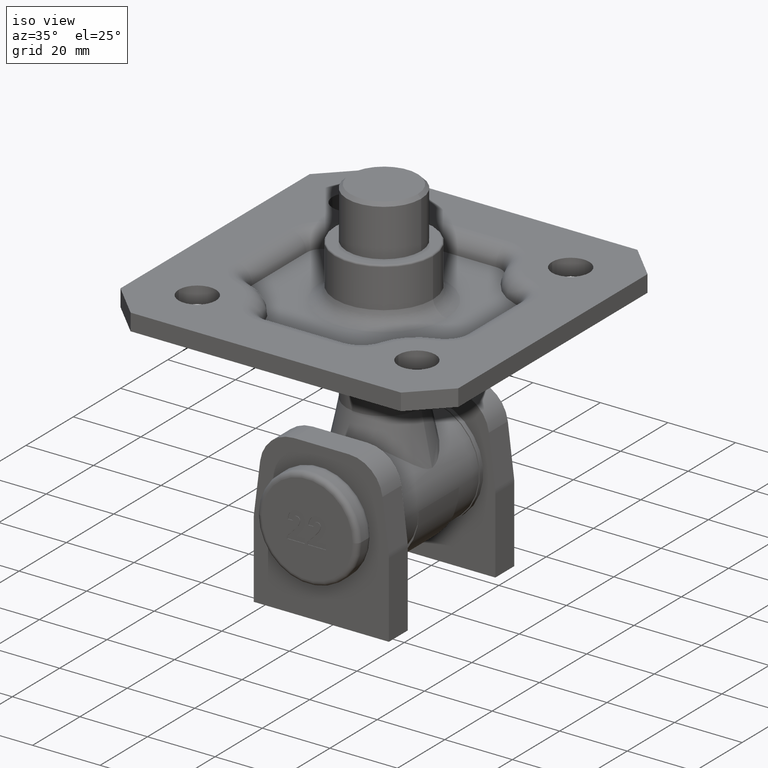
[diagram: clean part render]
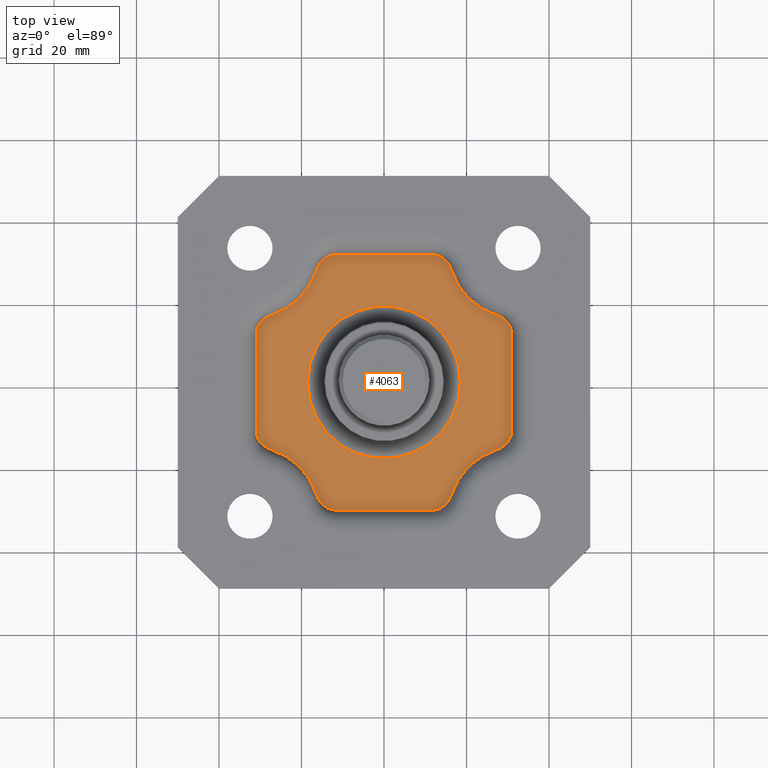
[diagram: tour spotlight — one face highlighted and labeled with its STEP entity id]
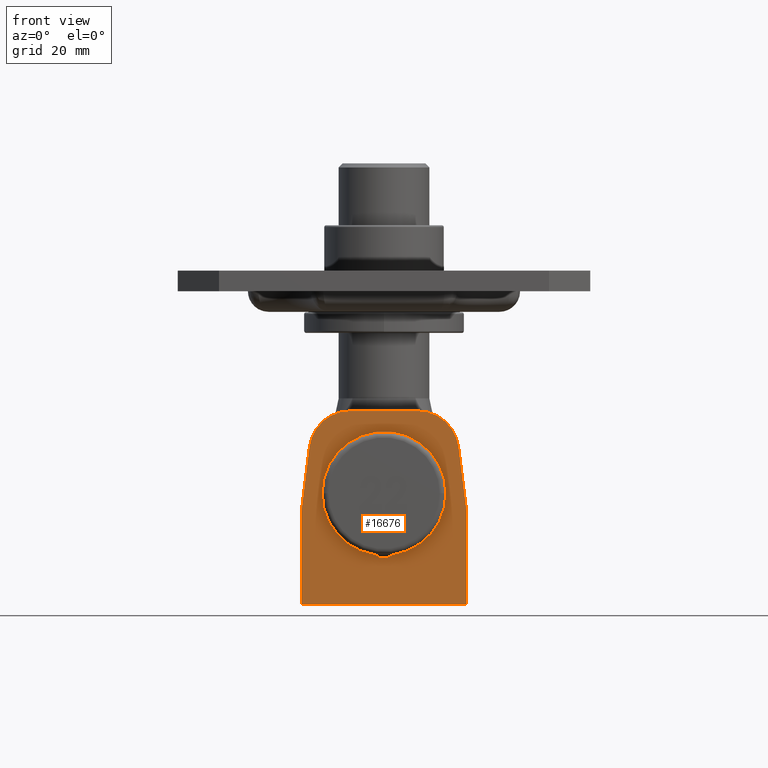
[diagram: tour spotlight — one face highlighted and labeled with its STEP entity id]
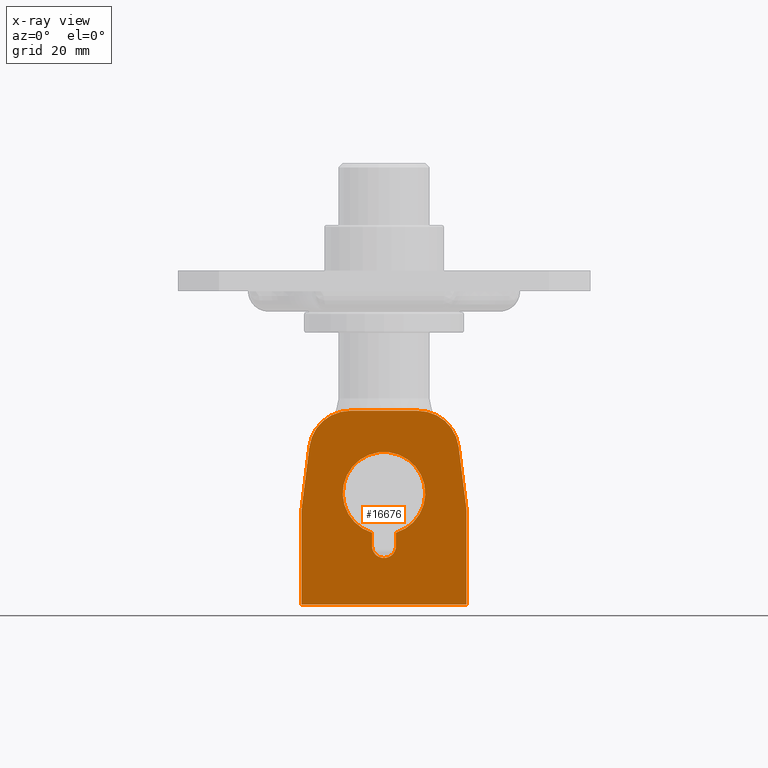
[diagram: x-ray of the same camera — body ghosted, this tour face saturated]
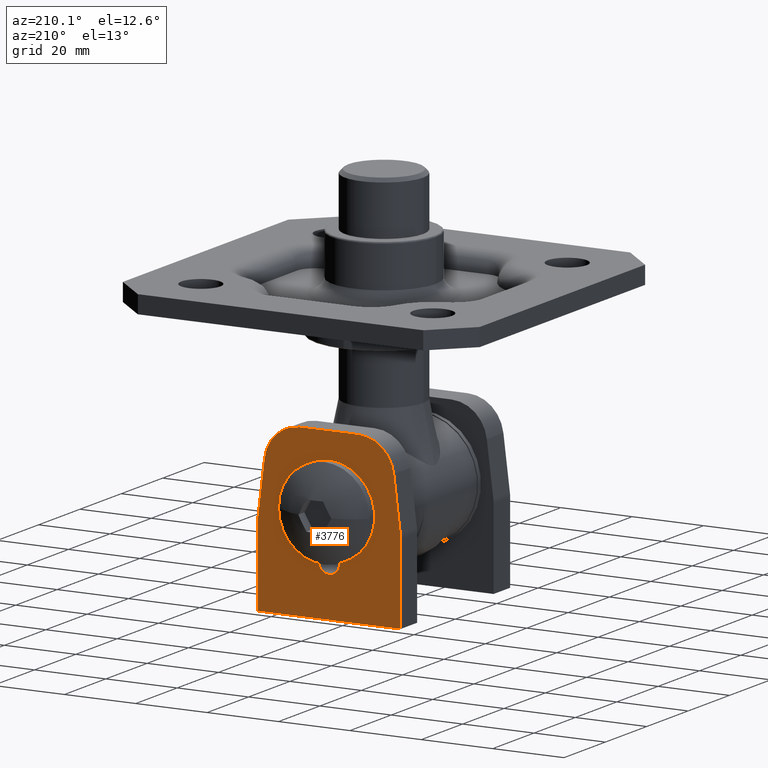
[diagram: tour spotlight — one face highlighted and labeled with its STEP entity id]
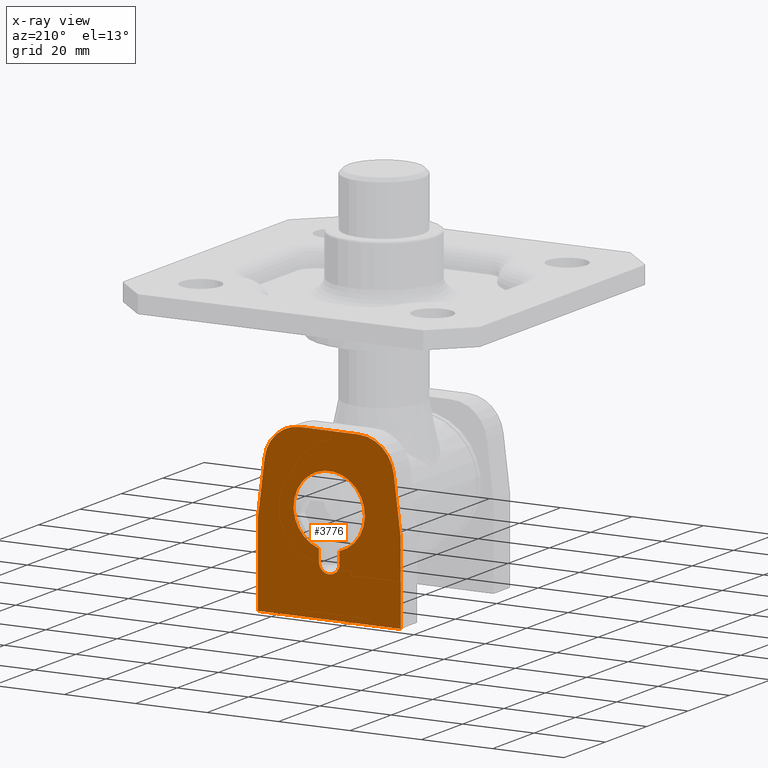
[diagram: x-ray of the same camera — body ghosted, this tour face saturated]
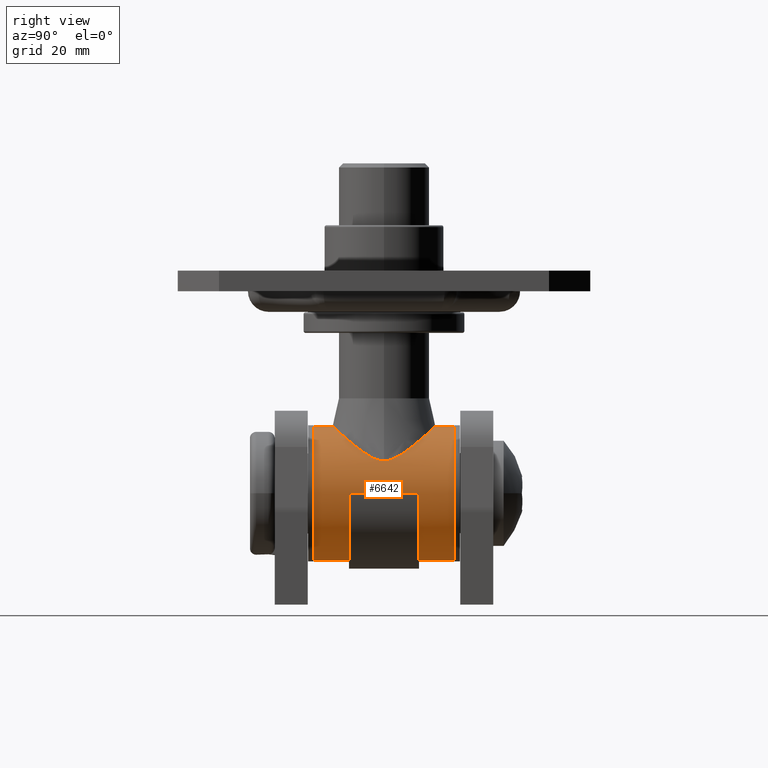
[diagram: tour spotlight — one face highlighted and labeled with its STEP entity id]
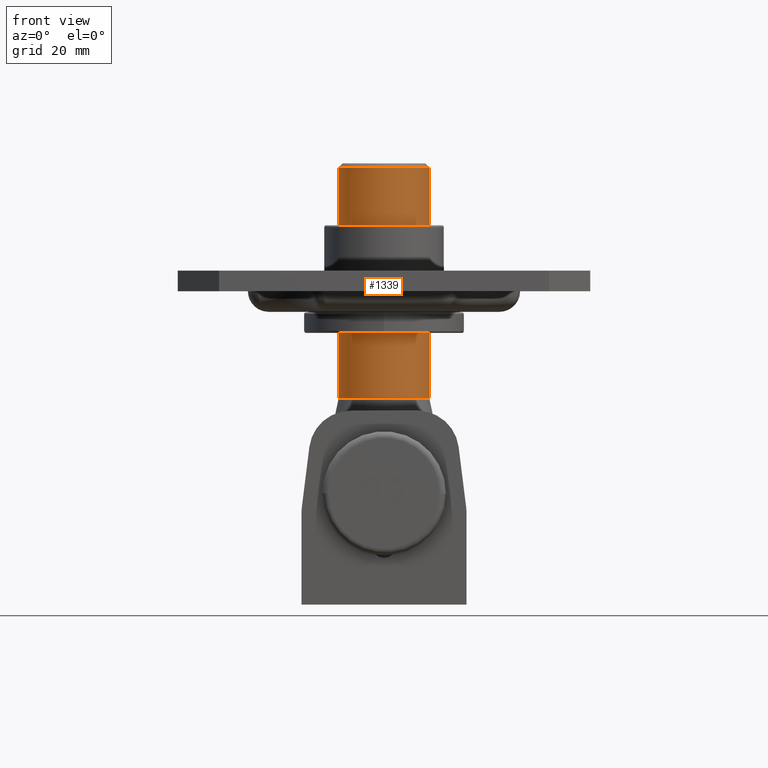
[diagram: tour spotlight — one face highlighted and labeled with its STEP entity id]
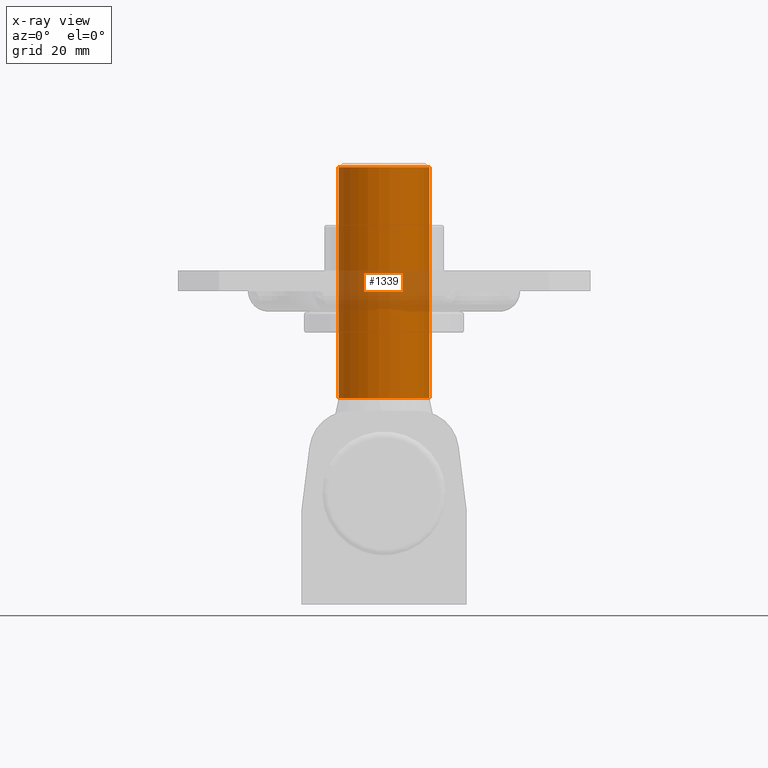
[diagram: x-ray of the same camera — body ghosted, this tour face saturated]
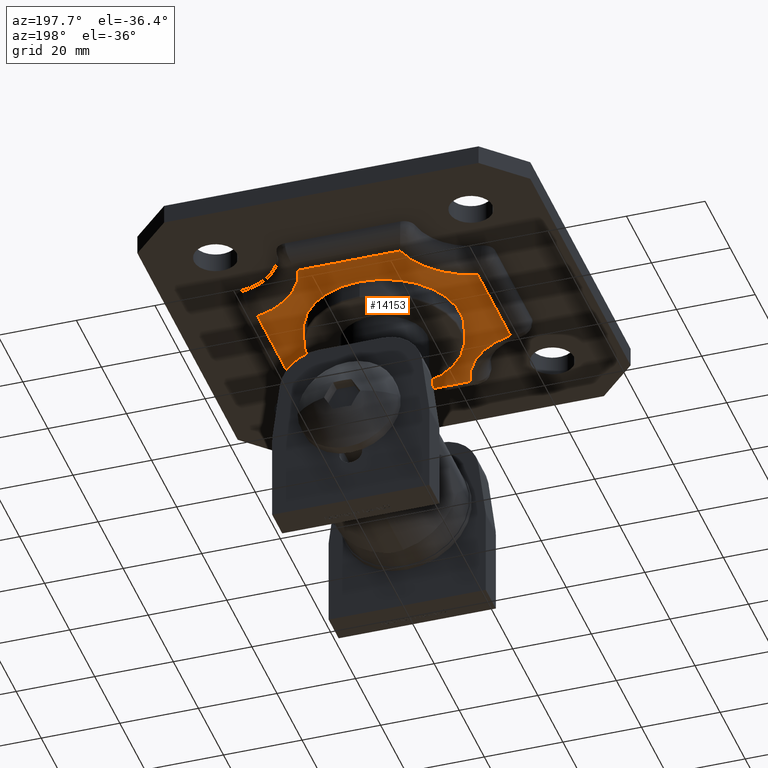
[diagram: tour spotlight — one face highlighted and labeled with its STEP entity id]
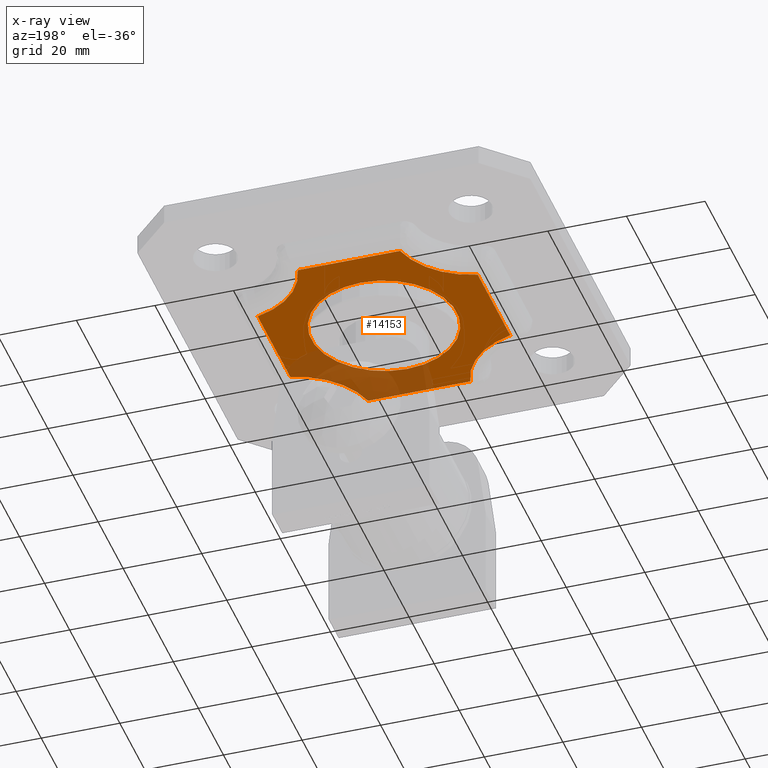
[diagram: x-ray of the same camera — body ghosted, this tour face saturated]
A machine part: a face-by-face anatomy tour. The part has 598 B-rep faces; the first image is the clean iso view, then the 6 largest visible faces are spotlighted one at a time (largest first), each with its STEP entity span.

Face 1 — top view, entity #4063. In plain terms, the highlighted planar face has unit normal (0, 0, 1).
Definition (entity closure, byte-faithful):
#96 = ORIENTED_EDGE ( 'NONE', *, *, #15837, .F. ) ;
#124 = LINE ( 'NONE', #3116, #1850 ) ;
#391 = CARTESIAN_POINT ( 'NONE',  ( -15.56630577812428000, -31.00000000000072800, 2.500000000000002200 ) ) ;
#408 = DIRECTION ( 'NONE',  ( 0.0000000000000000000, -1.000000000000000000, -0.0000000000000000000 ) ) ;
#458 = CARTESIAN_POINT ( 'NONE',  ( -27.47727272727345100, 16.25893443324024500, 2.500000000000002200 ) ) ;
#469 = LINE ( 'NONE', #12677, #1109 ) ;
#501 = CARTESIAN_POINT ( 'NONE',  ( 11.48215044301649500, 31.00000000000071400, 2.500000000000002200 ) ) ;
#542 = CARTESIAN_POINT ( 'NONE',  ( -31.00000000000072100, 11.48215044301649500, 2.500000000000002200 ) ) ;
#629 = EDGE_LOOP ( 'NONE', ( #96, #12695 ) ) ;
#673 = CARTESIAN_POINT ( 'NONE',  ( -27.47727272727345500, -16.25893443324023800, 2.500000000000002200 ) ) ;
#708 = AXIS2_PLACEMENT_3D ( 'NONE', #9150, #2184, #14320 ) ;
#746 = DIRECTION ( 'NONE',  ( 0.0000000000000000000, 0.0000000000000000000, 1.000000000000000000 ) ) ;
#866 = VERTEX_POINT ( 'NONE', #673 ) ;
#1052 = ORIENTED_EDGE ( 'NONE', *, *, #1323, .T. ) ;
#1109 = VECTOR ( 'NONE', #408, 1000.000000000000000 ) ;
#1130 = DIRECTION ( 'NONE',  ( -1.000000000000000000, 0.0000000000000000000, 0.0000000000000000000 ) ) ;
#1185 = CARTESIAN_POINT ( 'NONE',  ( -16.25893443324024500, 27.47727272727344800, 2.500000000000002200 ) ) ;
#1223 = CARTESIAN_POINT ( 'NONE',  ( 11.48215044301649200, -31.00000000000072800, 2.500000000000002200 ) ) ;
#1323 = EDGE_CURVE ( 'NONE', #7705, #3470, #7674, .T. ) ;
#1543 = VECTOR ( 'NONE', #4138, 1000.000000000000000 ) ;
#1547 = DIRECTION ( 'NONE',  ( 0.0000000000000000000, 0.0000000000000000000, -1.000000000000000000 ) ) ;
#1563 = VECTOR ( 'NONE', #10506, 1000.000000000000000 ) ;
#1581 = DIRECTION ( 'NONE',  ( -1.000000000000000000, 0.0000000000000000000, 0.0000000000000000000 ) ) ;
#1729 = CARTESIAN_POINT ( 'NONE',  ( 27.47727272727344800, 16.25893443324024500, 2.500000000000002200 ) ) ;
#1731 = AXIS2_PLACEMENT_3D ( 'NONE', #3771, #14720, #15935 ) ;
#1850 = VECTOR ( 'NONE', #10931, 1000.000000000000000 ) ;
#2133 = EDGE_CURVE ( 'NONE', #11703, #5280, #8716, .T. ) ;
#2184 = DIRECTION ( 'NONE',  ( 0.0000000000000000000, 0.0000000000000000000, -1.000000000000000000 ) ) ;
#2268 = CARTESIAN_POINT ( 'NONE',  ( -11.48215044301649500, 26.00000000000071400, 2.500000000000002200 ) ) ;
#2428 = CIRCLE ( 'NONE', #708, 5.000000000000115500 ) ;
#2446 = AXIS2_PLACEMENT_3D ( 'NONE', #17061, #17235, #14374 ) ;
#2504 = AXIS2_PLACEMENT_3D ( 'NONE', #14602, #2643, #2751 ) ;
#2618 = EDGE_CURVE ( 'NONE', #8003, #15229, #13566, .T. ) ;
#2643 = DIRECTION ( 'NONE',  ( 0.0000000000000000000, 0.0000000000000000000, -1.000000000000000000 ) ) ;
#2692 = CARTESIAN_POINT ( 'NONE',  ( -31.00000000000072100, -11.48215044301648800, 2.500000000000002200 ) ) ;
#2751 = DIRECTION ( 'NONE',  ( -1.000000000000000000, 0.0000000000000000000, 0.0000000000000000000 ) ) ;
#2810 = EDGE_CURVE ( 'NONE', #9755, #7705, #11232, .T. ) ;
#2889 = DIRECTION ( 'NONE',  ( -1.000000000000000000, 0.0000000000000000000, 0.0000000000000000000 ) ) ;
#2909 = DIRECTION ( 'NONE',  ( -1.000000000000000000, 0.0000000000000000000, 0.0000000000000000000 ) ) ;
#3058 = ORIENTED_EDGE ( 'NONE', *, *, #6524, .T. ) ;
#3116 = CARTESIAN_POINT ( 'NONE',  ( -15.56630577812427600, 31.00000000000071400, 2.500000000000002200 ) ) ;
#3214 = DIRECTION ( 'NONE',  ( -1.000000000000000000, 0.0000000000000000000, 0.0000000000000000000 ) ) ;
#3296 = CARTESIAN_POINT ( 'NONE',  ( -26.00000000000072100, -11.48215044301648800, 2.500000000000002200 ) ) ;
#3465 = CIRCLE ( 'NONE', #13453, 18.50000000000043000 ) ;
#3470 = VERTEX_POINT ( 'NONE', #17322 ) ;
#3599 = FACE_OUTER_BOUND ( 'NONE', #14019, .T. ) ;
#3771 = CARTESIAN_POINT ( 'NONE',  ( -11.48215044301649500, -26.00000000000072800, 2.500000000000002200 ) ) ;
#3979 = CIRCLE ( 'NONE', #13429, 5.000000000000115500 ) ;
#4063 = ADVANCED_FACE ( 'NONE', ( #3599, #12612 ), #15084, .T. ) ;
#4138 = DIRECTION ( 'NONE',  ( 0.0000000000000000000, 1.000000000000000000, 0.0000000000000000000 ) ) ;
#4403 = ORIENTED_EDGE ( 'NONE', *, *, #5596, .T. ) ;
#4443 = CARTESIAN_POINT ( 'NONE',  ( 0.0000000000000000000, 0.0000000000000000000, 2.500000000000002200 ) ) ;
#4546 = EDGE_CURVE ( 'NONE', #6394, #9755, #3979, .T. ) ;
#4595 = VERTEX_POINT ( 'NONE', #542 ) ;
#4764 = ORIENTED_EDGE ( 'NONE', *, *, #5620, .T. ) ;
#4868 = ORIENTED_EDGE ( 'NONE', *, *, #13339, .T. ) ;
#5030 = DIRECTION ( 'NONE',  ( 0.0000000000000000000, 0.0000000000000000000, -1.000000000000000000 ) ) ;
#5086 = AXIS2_PLACEMENT_3D ( 'NONE', #7431, #11420, #15434 ) ;
#5195 = CIRCLE ( 'NONE', #1731, 5.000000000000115500 ) ;
#5280 = VERTEX_POINT ( 'NONE', #15618 ) ;
#5385 = CARTESIAN_POINT ( 'NONE',  ( -11.48215044301649500, 31.00000000000071400, 2.500000000000002200 ) ) ;
#5584 = CARTESIAN_POINT ( 'NONE',  ( 26.00000000000071400, -11.48215044301649500, 2.500000000000002200 ) ) ;
#5596 = EDGE_CURVE ( 'NONE', #17397, #6394, #124, .T. ) ;
#5620 = EDGE_CURVE ( 'NONE', #8687, #15692, #11737, .T. ) ;
#5824 = VERTEX_POINT ( 'NONE', #1185 ) ;
#6164 = AXIS2_PLACEMENT_3D ( 'NONE', #16887, #746, #15473 ) ;
#6326 = DIRECTION ( 'NONE',  ( -1.000000000000000000, 0.0000000000000000000, 0.0000000000000000000 ) ) ;
#6338 = CARTESIAN_POINT ( 'NONE',  ( -16.25893443324024900, -27.47727272727345500, 2.500000000000002200 ) ) ;
#6394 = VERTEX_POINT ( 'NONE', #501 ) ;
#6478 = CARTESIAN_POINT ( 'NONE',  ( 27.47727272727344800, -16.25893443324024500, 2.500000000000002200 ) ) ;
#6524 = EDGE_CURVE ( 'NONE', #15229, #12386, #5195, .T. ) ;
#6531 = CARTESIAN_POINT ( 'NONE',  ( 16.25893443324024200, -27.47727272727345800, 2.500000000000002200 ) ) ;
#6787 = CIRCLE ( 'NONE', #8715, 5.000000000000115500 ) ;
#7314 = VERTEX_POINT ( 'NONE', #458 ) ;
#7423 = ORIENTED_EDGE ( 'NONE', *, *, #10185, .T. ) ;
#7431 = CARTESIAN_POINT ( 'NONE',  ( 32.50000000000073200, 32.50000000000073200, 2.500000000000002200 ) ) ;
#7592 = VERTEX_POINT ( 'NONE', #2692 ) ;
#7674 = CIRCLE ( 'NONE', #2504, 5.000000000000115500 ) ;
#7705 = VERTEX_POINT ( 'NONE', #1729 ) ;
#7932 = ORIENTED_EDGE ( 'NONE', *, *, #10173, .T. ) ;
#8003 = VERTEX_POINT ( 'NONE', #1223 ) ;
#8064 = AXIS2_PLACEMENT_3D ( 'NONE', #15916, #17271, #1130 ) ;
#8279 = DIRECTION ( 'NONE',  ( -1.000000000000000000, 0.0000000000000000000, 0.0000000000000000000 ) ) ;
#8601 = EDGE_CURVE ( 'NONE', #866, #7592, #14475, .T. ) ;
#8687 = VERTEX_POINT ( 'NONE', #11744 ) ;
#8715 = AXIS2_PLACEMENT_3D ( 'NONE', #2268, #14396, #11541 ) ;
#8716 = CIRCLE ( 'NONE', #15334, 18.50000000000043000 ) ;
#9150 = CARTESIAN_POINT ( 'NONE',  ( 11.48215044301649200, -26.00000000000072800, 2.500000000000002200 ) ) ;
#9190 = ORIENTED_EDGE ( 'NONE', *, *, #15756, .T. ) ;
#9755 = VERTEX_POINT ( 'NONE', #10471 ) ;
#9902 = DIRECTION ( 'NONE',  ( 0.0000000000000000000, 0.0000000000000000000, -1.000000000000000000 ) ) ;
#10102 = ORIENTED_EDGE ( 'NONE', *, *, #8601, .T. ) ;
#10173 = EDGE_CURVE ( 'NONE', #12386, #866, #14005, .T. ) ;
#10185 = EDGE_CURVE ( 'NONE', #15614, #8003, #2428, .T. ) ;
#10385 = LINE ( 'NONE', #10825, #1543 ) ;
#10471 = CARTESIAN_POINT ( 'NONE',  ( 16.25893443324024500, 27.47727272727344800, 2.500000000000002200 ) ) ;
#10506 = DIRECTION ( 'NONE',  ( -1.000000000000000000, 0.0000000000000000000, 0.0000000000000000000 ) ) ;
#10825 = CARTESIAN_POINT ( 'NONE',  ( -31.00000000000072100, 15.56630577812427600, 2.500000000000002200 ) ) ;
#10854 = ORIENTED_EDGE ( 'NONE', *, *, #2810, .T. ) ;
#10931 = DIRECTION ( 'NONE',  ( 1.000000000000000000, 0.0000000000000000000, 0.0000000000000000000 ) ) ;
#11032 = DIRECTION ( 'NONE',  ( 0.0000000000000000000, 0.0000000000000000000, -1.000000000000000000 ) ) ;
#11053 = ORIENTED_EDGE ( 'NONE', *, *, #4546, .T. ) ;
#11163 = CIRCLE ( 'NONE', #12238, 5.000000000000115500 ) ;
#11232 = CIRCLE ( 'NONE', #5086, 17.00000000000038700 ) ;
#11309 = EDGE_CURVE ( 'NONE', #5824, #17397, #6787, .T. ) ;
#11420 = DIRECTION ( 'NONE',  ( 0.0000000000000000000, 0.0000000000000000000, 1.000000000000000000 ) ) ;
#11541 = DIRECTION ( 'NONE',  ( -1.000000000000000000, 0.0000000000000000000, 0.0000000000000000000 ) ) ;
#11703 = VERTEX_POINT ( 'NONE', #15851 ) ;
#11737 = CIRCLE ( 'NONE', #17177, 5.000000000000115500 ) ;
#11744 = CARTESIAN_POINT ( 'NONE',  ( 31.00000000000071400, -11.48215044301649500, 2.500000000000002200 ) ) ;
#12238 = AXIS2_PLACEMENT_3D ( 'NONE', #17147, #5030, #6326 ) ;
#12386 = VERTEX_POINT ( 'NONE', #6338 ) ;
#12528 = EDGE_CURVE ( 'NONE', #7314, #5824, #16895, .T. ) ;
#12611 = ORIENTED_EDGE ( 'NONE', *, *, #2618, .T. ) ;
#12612 = FACE_BOUND ( 'NONE', #629, .T. ) ;
#12677 = CARTESIAN_POINT ( 'NONE',  ( 31.00000000000071400, 15.56630577812427600, 2.500000000000002200 ) ) ;
#12695 = ORIENTED_EDGE ( 'NONE', *, *, #2133, .F. ) ;
#13013 = ORIENTED_EDGE ( 'NONE', *, *, #15031, .T. ) ;
#13339 = EDGE_CURVE ( 'NONE', #15692, #15614, #16015, .T. ) ;
#13429 = AXIS2_PLACEMENT_3D ( 'NONE', #13810, #9902, #3214 ) ;
#13453 = AXIS2_PLACEMENT_3D ( 'NONE', #4443, #11032, #1581 ) ;
#13566 = LINE ( 'NONE', #391, #1563 ) ;
#13683 = ORIENTED_EDGE ( 'NONE', *, *, #11309, .T. ) ;
#13810 = CARTESIAN_POINT ( 'NONE',  ( 11.48215044301649500, 26.00000000000071400, 2.500000000000002200 ) ) ;
#13820 = DIRECTION ( 'NONE',  ( 0.0000000000000000000, 0.0000000000000000000, -1.000000000000000000 ) ) ;
#13834 = DIRECTION ( 'NONE',  ( 0.0000000000000000000, 0.0000000000000000000, -1.000000000000000000 ) ) ;
#14005 = CIRCLE ( 'NONE', #2446, 17.00000000000039100 ) ;
#14019 = EDGE_LOOP ( 'NONE', ( #14802, #9190, #14679, #13683, #4403, #11053, #10854, #1052, #13013, #4764, #4868, #7423, #12611, #3058, #7932, #10102 ) ) ;
#14320 = DIRECTION ( 'NONE',  ( -1.000000000000000000, 0.0000000000000000000, 0.0000000000000000000 ) ) ;
#14374 = DIRECTION ( 'NONE',  ( -1.000000000000000000, 0.0000000000000000000, 0.0000000000000000000 ) ) ;
#14396 = DIRECTION ( 'NONE',  ( 0.0000000000000000000, 0.0000000000000000000, -1.000000000000000000 ) ) ;
#14475 = CIRCLE ( 'NONE', #14934, 5.000000000000115500 ) ;
#14602 = CARTESIAN_POINT ( 'NONE',  ( 26.00000000000071400, 11.48215044301649500, 2.500000000000002200 ) ) ;
#14679 = ORIENTED_EDGE ( 'NONE', *, *, #12528, .T. ) ;
#14720 = DIRECTION ( 'NONE',  ( 0.0000000000000000000, 0.0000000000000000000, -1.000000000000000000 ) ) ;
#14802 = ORIENTED_EDGE ( 'NONE', *, *, #15342, .T. ) ;
#14934 = AXIS2_PLACEMENT_3D ( 'NONE', #3296, #16760, #16694 ) ;
#15031 = EDGE_CURVE ( 'NONE', #3470, #8687, #469, .T. ) ;
#15084 = PLANE ( 'NONE',  #15228 ) ;
#15156 = CARTESIAN_POINT ( 'NONE',  ( 0.0000000000000000000, 0.0000000000000000000, 2.500000000000002200 ) ) ;
#15228 = AXIS2_PLACEMENT_3D ( 'NONE', #16366, #1547, #2909 ) ;
#15229 = VERTEX_POINT ( 'NONE', #15795 ) ;
#15334 = AXIS2_PLACEMENT_3D ( 'NONE', #15156, #13820, #8279 ) ;
#15342 = EDGE_CURVE ( 'NONE', #7592, #4595, #10385, .T. ) ;
#15434 = DIRECTION ( 'NONE',  ( -1.000000000000000000, 0.0000000000000000000, 0.0000000000000000000 ) ) ;
#15473 = DIRECTION ( 'NONE',  ( -1.000000000000000000, 0.0000000000000000000, 0.0000000000000000000 ) ) ;
#15614 = VERTEX_POINT ( 'NONE', #6531 ) ;
#15618 = CARTESIAN_POINT ( 'NONE',  ( -18.50000000000044800, 0.0000000000000000000, 2.500000000000002200 ) ) ;
#15692 = VERTEX_POINT ( 'NONE', #6478 ) ;
#15756 = EDGE_CURVE ( 'NONE', #4595, #7314, #11163, .T. ) ;
#15795 = CARTESIAN_POINT ( 'NONE',  ( -11.48215044301649500, -31.00000000000072800, 2.500000000000002200 ) ) ;
#15837 = EDGE_CURVE ( 'NONE', #5280, #11703, #3465, .T. ) ;
#15851 = CARTESIAN_POINT ( 'NONE',  ( 18.50000000000015300, 2.265596578422622300E-015, 2.500000000000002200 ) ) ;
#15916 = CARTESIAN_POINT ( 'NONE',  ( -32.50000000000073200, 32.50000000000073200, 2.500000000000002200 ) ) ;
#15935 = DIRECTION ( 'NONE',  ( -1.000000000000000000, 0.0000000000000000000, 0.0000000000000000000 ) ) ;
#16015 = CIRCLE ( 'NONE', #6164, 17.00000000000038700 ) ;
#16366 = CARTESIAN_POINT ( 'NONE',  ( -32.50000000000073900, -32.50000000000072500, 2.500000000000002200 ) ) ;
#16694 = DIRECTION ( 'NONE',  ( -1.000000000000000000, 0.0000000000000000000, 0.0000000000000000000 ) ) ;
#16760 = DIRECTION ( 'NONE',  ( 0.0000000000000000000, 0.0000000000000000000, -1.000000000000000000 ) ) ;
#16887 = CARTESIAN_POINT ( 'NONE',  ( 32.50000000000073200, -32.50000000000073200, 2.500000000000002200 ) ) ;
#16895 = CIRCLE ( 'NONE', #8064, 17.00000000000038400 ) ;
#17061 = CARTESIAN_POINT ( 'NONE',  ( -32.50000000000073900, -32.50000000000072500, 2.500000000000002200 ) ) ;
#17147 = CARTESIAN_POINT ( 'NONE',  ( -26.00000000000072100, 11.48215044301649500, 2.500000000000002200 ) ) ;
#17177 = AXIS2_PLACEMENT_3D ( 'NONE', #5584, #13834, #2889 ) ;
#17235 = DIRECTION ( 'NONE',  ( 0.0000000000000000000, 0.0000000000000000000, 1.000000000000000000 ) ) ;
#17271 = DIRECTION ( 'NONE',  ( 0.0000000000000000000, 0.0000000000000000000, 1.000000000000000000 ) ) ;
#17322 = CARTESIAN_POINT ( 'NONE',  ( 31.00000000000071400, 11.48215044301649500, 2.500000000000002200 ) ) ;
#17397 = VERTEX_POINT ( 'NONE', #5385 ) ;

Face 2 — front view, entity #16676. An x-ray twin of the same camera follows (body ghosted, this face saturated) — the face is partly hidden behind the body. In plain terms, the highlighted planar face has unit normal (0, -1, 0).
Definition (entity closure, byte-faithful):
#98 = LINE ( 'NONE', #6456, #16767 ) ;
#400 = CARTESIAN_POINT ( 'NONE',  ( 17.00000000000000000, -4.000000000000000000, 23.50000000000000000 ) ) ;
#478 = DIRECTION ( 'NONE',  ( 0.0000000000000000000, 0.0000000000000000000, -1.000000000000000000 ) ) ;
#518 = ORIENTED_EDGE ( 'NONE', *, *, #7476, .T. ) ;
#625 = CIRCLE ( 'NONE', #7955, 9.999999999999998200 ) ;
#646 = CARTESIAN_POINT ( 'NONE',  ( 20.00000000000000000, -4.000000000000000000, -23.50000000000000700 ) ) ;
#833 = AXIS2_PLACEMENT_3D ( 'NONE', #11376, #12753, #478 ) ;
#914 = VERTEX_POINT ( 'NONE', #1020 ) ;
#982 = VERTEX_POINT ( 'NONE', #7800 ) ;
#1020 = CARTESIAN_POINT ( 'NONE',  ( 19.92277876713667700, -4.000000000000000000, 0.1177698629065827700 ) ) ;
#1057 = DIRECTION ( 'NONE',  ( 0.1240347345892083800, -0.0000000000000000000, 0.9922778767136676300 ) ) ;
#1120 = CARTESIAN_POINT ( 'NONE',  ( -10.00000000000000000, -4.000000000000000000, -1.122577482985502000 ) ) ;
#1300 = EDGE_CURVE ( 'NONE', #15204, #914, #2634, .T. ) ;
#1345 = LINE ( 'NONE', #16283, #1577 ) ;
#1397 = ORIENTED_EDGE ( 'NONE', *, *, #13620, .T. ) ;
#1496 = DIRECTION ( 'NONE',  ( 0.0000000000000000000, 1.000000000000000000, 0.0000000000000000000 ) ) ;
#1577 = VECTOR ( 'NONE', #12286, 1000.000000000000000 ) ;
#1807 = ORIENTED_EDGE ( 'NONE', *, *, #9019, .F. ) ;
#2172 = CARTESIAN_POINT ( 'NONE',  ( -20.00000000000000000, -4.000000000000000000, -23.50000000000000700 ) ) ;
#2381 = FACE_BOUND ( 'NONE', #15451, .T. ) ;
#2383 = ORIENTED_EDGE ( 'NONE', *, *, #9945, .T. ) ;
#2401 = CARTESIAN_POINT ( 'NONE',  ( -17.00000000000000000, -4.000000000000000000, 23.50000000000000000 ) ) ;
#2425 = PLANE ( 'NONE',  #12434 ) ;
#2458 = DIRECTION ( 'NONE',  ( 0.0000000000000000000, 0.0000000000000000000, -1.000000000000000000 ) ) ;
#2489 = DIRECTION ( 'NONE',  ( 0.0000000000000000000, -1.000000000000000000, 0.0000000000000000000 ) ) ;
#2553 = DIRECTION ( 'NONE',  ( 0.0000000000000000000, 0.0000000000000000000, -1.000000000000000000 ) ) ;
#2634 = CIRCLE ( 'NONE', #3151, 10.00000000000000000 ) ;
#2742 = LINE ( 'NONE', #11827, #4412 ) ;
#2768 = ORIENTED_EDGE ( 'NONE', *, *, #12287, .T. ) ;
#2900 = VECTOR ( 'NONE', #3338, 1000.000000000000000 ) ;
#2955 = CARTESIAN_POINT ( 'NONE',  ( 0.0000000000000000000, -4.000000000000000000, -12.20000000000000100 ) ) ;
#3151 = AXIS2_PLACEMENT_3D ( 'NONE', #17351, #3941, #9441 ) ;
#3272 = DIRECTION ( 'NONE',  ( 1.000000000000000000, -0.0000000000000000000, -0.0000000000000000000 ) ) ;
#3338 = DIRECTION ( 'NONE',  ( -0.0000000000000000000, -0.0000000000000000000, -1.000000000000000000 ) ) ;
#3669 = CARTESIAN_POINT ( 'NONE',  ( -18.09495658176349100, -4.000000000000000000, 14.74034734589208800 ) ) ;
#3705 = DIRECTION ( 'NONE',  ( -1.342775999361927100E-016, -0.0000000000000000000, 1.000000000000000000 ) ) ;
#3919 = VECTOR ( 'NONE', #3272, 1000.000000000000000 ) ;
#3941 = DIRECTION ( 'NONE',  ( 0.0000000000000000000, -1.000000000000000000, 0.0000000000000000000 ) ) ;
#3954 = VERTEX_POINT ( 'NONE', #10065 ) ;
#4198 = CARTESIAN_POINT ( 'NONE',  ( 20.00000000000000000, -4.000000000000000000, -23.50000000000000700 ) ) ;
#4285 = ORIENTED_EDGE ( 'NONE', *, *, #16455, .T. ) ;
#4374 = VERTEX_POINT ( 'NONE', #13080 ) ;
#4407 = EDGE_CURVE ( 'NONE', #11204, #982, #11553, .T. ) ;
#4412 = VECTOR ( 'NONE', #17201, 1000.000000000000000 ) ;
#4457 = CIRCLE ( 'NONE', #4907, 10.00000000000000000 ) ;
#4465 = VERTEX_POINT ( 'NONE', #4633 ) ;
#4633 = CARTESIAN_POINT ( 'NONE',  ( 8.172177814626813600, -4.000000000000000000, 23.50000000000000000 ) ) ;
#4907 = AXIS2_PLACEMENT_3D ( 'NONE', #14096, #11216, #13959 ) ;
#5205 = CARTESIAN_POINT ( 'NONE',  ( 20.00000000000000000, -4.000000000000000000, -1.122577482985502000 ) ) ;
#5384 = LINE ( 'NONE', #400, #3919 ) ;
#5787 = ORIENTED_EDGE ( 'NONE', *, *, #10761, .T. ) ;
#5801 = DIRECTION ( 'NONE',  ( 0.0000000000000000000, 0.0000000000000000000, 1.000000000000000000 ) ) ;
#5829 = LINE ( 'NONE', #10441, #16143 ) ;
#5981 = EDGE_CURVE ( 'NONE', #15204, #14063, #7928, .T. ) ;
#6147 = FACE_OUTER_BOUND ( 'NONE', #13637, .T. ) ;
#6375 = AXIS2_PLACEMENT_3D ( 'NONE', #1120, #13221, #2458 ) ;
#6456 = CARTESIAN_POINT ( 'NONE',  ( 20.00000000000000000, -4.000000000000000000, -0.5000000000000038900 ) ) ;
#6552 = AXIS2_PLACEMENT_3D ( 'NONE', #8222, #16343, #8281 ) ;
#6621 = CIRCLE ( 'NONE', #11876, 10.00000000000000000 ) ;
#7218 = VERTEX_POINT ( 'NONE', #12313 ) ;
#7476 = EDGE_CURVE ( 'NONE', #982, #4374, #5829, .T. ) ;
#7771 = CARTESIAN_POINT ( 'NONE',  ( 8.172177814626813600, -4.000000000000000000, 13.50000000000000200 ) ) ;
#7800 = CARTESIAN_POINT ( 'NONE',  ( -2.899999999999999900, -4.000000000000000000, -9.300000000000000700 ) ) ;
#7846 = ORIENTED_EDGE ( 'NONE', *, *, #1300, .T. ) ;
#7878 = DIRECTION ( 'NONE',  ( 0.0000000000000000000, -1.000000000000000000, 0.0000000000000000000 ) ) ;
#7928 = LINE ( 'NONE', #646, #2900 ) ;
#7955 = AXIS2_PLACEMENT_3D ( 'NONE', #8484, #1496, #5801 ) ;
#8222 = CARTESIAN_POINT ( 'NONE',  ( 0.0000000000000000000, -4.000000000000000000, -9.300000000000000700 ) ) ;
#8281 = DIRECTION ( 'NONE',  ( 0.0000000000000000000, 0.0000000000000000000, -1.000000000000000000 ) ) ;
#8376 = ORIENTED_EDGE ( 'NONE', *, *, #10838, .F. ) ;
#8436 = CIRCLE ( 'NONE', #833, 2.899999999999999900 ) ;
#8484 = CARTESIAN_POINT ( 'NONE',  ( 1.925929944387235900E-031, -4.000000000000000000, 3.499999999999998200 ) ) ;
#8711 = CARTESIAN_POINT ( 'NONE',  ( -20.00000000000000000, -4.000000000000000000, -23.50000000000000700 ) ) ;
#8751 = EDGE_CURVE ( 'NONE', #3954, #914, #98, .T. ) ;
#8790 = CARTESIAN_POINT ( 'NONE',  ( 2.899999999999999900, -4.000000000000000000, -9.300000000000000700 ) ) ;
#8909 = CIRCLE ( 'NONE', #6375, 10.00000000000000000 ) ;
#9019 = EDGE_CURVE ( 'NONE', #14409, #4465, #5384, .T. ) ;
#9155 = CARTESIAN_POINT ( 'NONE',  ( 0.0000000000000000000, -4.000000000000000000, 0.0000000000000000000 ) ) ;
#9364 = VERTEX_POINT ( 'NONE', #2172 ) ;
#9392 = VERTEX_POINT ( 'NONE', #8790 ) ;
#9441 = DIRECTION ( 'NONE',  ( 0.0000000000000000000, 0.0000000000000000000, -1.000000000000000000 ) ) ;
#9693 = ORIENTED_EDGE ( 'NONE', *, *, #5981, .F. ) ;
#9728 = EDGE_CURVE ( 'NONE', #3954, #4465, #6621, .T. ) ;
#9945 = EDGE_CURVE ( 'NONE', #7218, #9392, #1345, .T. ) ;
#10065 = CARTESIAN_POINT ( 'NONE',  ( 18.09495658176349100, -4.000000000000000000, 14.74034734589208600 ) ) ;
#10136 = DIRECTION ( 'NONE',  ( -1.000000000000000000, -0.0000000000000000000, -0.0000000000000000000 ) ) ;
#10382 = DIRECTION ( 'NONE',  ( 0.1240347345892083800, -0.0000000000000000000, -0.9922778767136676300 ) ) ;
#10441 = CARTESIAN_POINT ( 'NONE',  ( -2.900000000000000400, -4.000000000000000000, -6.070266453970862000 ) ) ;
#10761 = EDGE_CURVE ( 'NONE', #13919, #16023, #8909, .T. ) ;
#10838 = EDGE_CURVE ( 'NONE', #13919, #14427, #17133, .T. ) ;
#11064 = ORIENTED_EDGE ( 'NONE', *, *, #4407, .T. ) ;
#11204 = VERTEX_POINT ( 'NONE', #2955 ) ;
#11216 = DIRECTION ( 'NONE',  ( 0.0000000000000000000, -1.000000000000000000, 0.0000000000000000000 ) ) ;
#11306 = ORIENTED_EDGE ( 'NONE', *, *, #15089, .F. ) ;
#11376 = CARTESIAN_POINT ( 'NONE',  ( 0.0000000000000000000, -4.000000000000000000, -9.300000000000000700 ) ) ;
#11553 = CIRCLE ( 'NONE', #6552, 2.899999999999999900 ) ;
#11827 = CARTESIAN_POINT ( 'NONE',  ( -20.00000000000000000, -4.000000000000000000, -0.5000000000000038900 ) ) ;
#11876 = AXIS2_PLACEMENT_3D ( 'NONE', #7771, #7878, #2553 ) ;
#12286 = DIRECTION ( 'NONE',  ( -1.342775999361927100E-016, -0.0000000000000000000, -1.000000000000000000 ) ) ;
#12287 = EDGE_CURVE ( 'NONE', #9392, #11204, #8436, .T. ) ;
#12313 = CARTESIAN_POINT ( 'NONE',  ( 2.900000000000000400, -4.000000000000000000, -6.070266453970862000 ) ) ;
#12371 = ORIENTED_EDGE ( 'NONE', *, *, #9728, .T. ) ;
#12434 = AXIS2_PLACEMENT_3D ( 'NONE', #9155, #2489, #17178 ) ;
#12488 = LINE ( 'NONE', #8711, #15678 ) ;
#12753 = DIRECTION ( 'NONE',  ( 0.0000000000000000000, 1.000000000000000000, -0.0000000000000000000 ) ) ;
#13080 = CARTESIAN_POINT ( 'NONE',  ( -2.900000000000000400, -4.000000000000000000, -6.070266453970862000 ) ) ;
#13159 = ORIENTED_EDGE ( 'NONE', *, *, #14261, .F. ) ;
#13221 = DIRECTION ( 'NONE',  ( 0.0000000000000000000, -1.000000000000000000, 0.0000000000000000000 ) ) ;
#13620 = EDGE_CURVE ( 'NONE', #4374, #7218, #625, .T. ) ;
#13637 = EDGE_LOOP ( 'NONE', ( #8376, #5787, #13159, #11306, #9693, #7846, #13692, #12371, #1807, #4285 ) ) ;
#13692 = ORIENTED_EDGE ( 'NONE', *, *, #8751, .F. ) ;
#13919 = VERTEX_POINT ( 'NONE', #14586 ) ;
#13959 = DIRECTION ( 'NONE',  ( 0.0000000000000000000, 0.0000000000000000000, -1.000000000000000000 ) ) ;
#14063 = VERTEX_POINT ( 'NONE', #4198 ) ;
#14096 = CARTESIAN_POINT ( 'NONE',  ( -8.172177814626813600, -4.000000000000000000, 13.50000000000000400 ) ) ;
#14261 = EDGE_CURVE ( 'NONE', #9364, #16023, #2742, .T. ) ;
#14409 = VERTEX_POINT ( 'NONE', #14502 ) ;
#14427 = VERTEX_POINT ( 'NONE', #3669 ) ;
#14502 = CARTESIAN_POINT ( 'NONE',  ( -8.172177814626813600, -4.000000000000000000, 23.50000000000000000 ) ) ;
#14586 = CARTESIAN_POINT ( 'NONE',  ( -19.92277876713667700, -4.000000000000000000, 0.1177698629065866700 ) ) ;
#15089 = EDGE_CURVE ( 'NONE', #14063, #9364, #12488, .T. ) ;
#15204 = VERTEX_POINT ( 'NONE', #5205 ) ;
#15451 = EDGE_LOOP ( 'NONE', ( #518, #1397, #2383, #2768, #11064 ) ) ;
#15672 = VECTOR ( 'NONE', #1057, 1000.000000000000200 ) ;
#15678 = VECTOR ( 'NONE', #10136, 1000.000000000000000 ) ;
#16023 = VERTEX_POINT ( 'NONE', #17166 ) ;
#16143 = VECTOR ( 'NONE', #3705, 1000.000000000000000 ) ;
#16283 = CARTESIAN_POINT ( 'NONE',  ( 2.899999999999999900, -4.000000000000000000, -9.300000000000000700 ) ) ;
#16343 = DIRECTION ( 'NONE',  ( 0.0000000000000000000, 1.000000000000000000, -0.0000000000000000000 ) ) ;
#16455 = EDGE_CURVE ( 'NONE', #14409, #14427, #4457, .T. ) ;
#16676 = ADVANCED_FACE ( 'NONE', ( #6147, #2381 ), #2425, .T. ) ;
#16767 = VECTOR ( 'NONE', #10382, 1000.000000000000200 ) ;
#17133 = LINE ( 'NONE', #2401, #15672 ) ;
#17166 = CARTESIAN_POINT ( 'NONE',  ( -20.00000000000000000, -4.000000000000000000, -1.122577482985502000 ) ) ;
#17178 = DIRECTION ( 'NONE',  ( 0.0000000000000000000, -0.0000000000000000000, -1.000000000000000000 ) ) ;
#17201 = DIRECTION ( 'NONE',  ( -0.0000000000000000000, -0.0000000000000000000, 1.000000000000000000 ) ) ;
#17351 = CARTESIAN_POINT ( 'NONE',  ( 10.00000000000000000, -4.000000000000000000, -1.122577482985502000 ) ) ;

Face 3 — auxiliary view, entity #3776. An x-ray twin of the same camera follows (body ghosted, this face saturated) — the face is partly hidden behind the body. In plain terms, the highlighted planar face has unit normal (0, -1, 0).
Definition (entity closure, byte-faithful):
#191 = DIRECTION ( 'NONE',  ( -0.0000000000000000000, -0.0000000000000000000, -1.000000000000000000 ) ) ;
#639 = CARTESIAN_POINT ( 'NONE',  ( -2.900000000000000400, 4.000000000000000000, -6.070266453970862000 ) ) ;
#652 = EDGE_CURVE ( 'NONE', #7040, #13741, #15704, .T. ) ;
#778 = CARTESIAN_POINT ( 'NONE',  ( 20.00000000000000000, 4.000000000000000000, -1.122577482985502000 ) ) ;
#792 = AXIS2_PLACEMENT_3D ( 'NONE', #4234, #1534, #1470 ) ;
#805 = VERTEX_POINT ( 'NONE', #12883 ) ;
#1139 = VECTOR ( 'NONE', #13298, 1000.000000000000000 ) ;
#1206 = LINE ( 'NONE', #12834, #9637 ) ;
#1215 = DIRECTION ( 'NONE',  ( 0.0000000000000000000, 1.000000000000000000, -0.0000000000000000000 ) ) ;
#1218 = DIRECTION ( 'NONE',  ( -7.979727989493312600E-015, 0.0000000000000000000, -1.000000000000000000 ) ) ;
#1264 = ORIENTED_EDGE ( 'NONE', *, *, #3078, .F. ) ;
#1309 = EDGE_LOOP ( 'NONE', ( #4452, #6427, #9415, #1264, #16332 ) ) ;
#1313 = VERTEX_POINT ( 'NONE', #2251 ) ;
#1360 = VECTOR ( 'NONE', #4049, 1000.000000000000000 ) ;
#1470 = DIRECTION ( 'NONE',  ( 0.0000000000000000000, -0.0000000000000000000, -1.000000000000000000 ) ) ;
#1534 = DIRECTION ( 'NONE',  ( 0.0000000000000000000, -1.000000000000000000, 0.0000000000000000000 ) ) ;
#1559 = DIRECTION ( 'NONE',  ( 0.0000000000000000000, 0.0000000000000000000, 1.000000000000000000 ) ) ;
#1728 = CARTESIAN_POINT ( 'NONE',  ( 0.0000000000000000000, 4.000000000000000000, -9.300000000000000700 ) ) ;
#2129 = VECTOR ( 'NONE', #16910, 1000.000000000000200 ) ;
#2251 = CARTESIAN_POINT ( 'NONE',  ( 20.00000000000000000, 4.000000000000000000, -23.50000000000000700 ) ) ;
#2255 = ORIENTED_EDGE ( 'NONE', *, *, #652, .T. ) ;
#2264 = DIRECTION ( 'NONE',  ( 0.0000000000000000000, 0.0000000000000000000, -1.000000000000000000 ) ) ;
#2296 = CARTESIAN_POINT ( 'NONE',  ( -19.92277876713667700, 4.000000000000000000, 0.1177698629065866700 ) ) ;
#2556 = DIRECTION ( 'NONE',  ( -0.0000000000000000000, 1.000000000000000000, -0.0000000000000000000 ) ) ;
#2822 = CARTESIAN_POINT ( 'NONE',  ( -20.00000000000000000, 4.000000000000000000, -0.5000000000000038900 ) ) ;
#2851 = EDGE_CURVE ( 'NONE', #8055, #8821, #10399, .T. ) ;
#2863 = VERTEX_POINT ( 'NONE', #2296 ) ;
#2864 = LINE ( 'NONE', #3165, #4981 ) ;
#2947 = PLANE ( 'NONE',  #792 ) ;
#2984 = ORIENTED_EDGE ( 'NONE', *, *, #8451, .T. ) ;
#3010 = CARTESIAN_POINT ( 'NONE',  ( 8.172177814626813600, 4.000000000000000000, 23.50000000000000000 ) ) ;
#3078 = EDGE_CURVE ( 'NONE', #11794, #805, #17239, .T. ) ;
#3081 = DIRECTION ( 'NONE',  ( 0.0000000000000000000, 0.0000000000000000000, -1.000000000000000000 ) ) ;
#3165 = CARTESIAN_POINT ( 'NONE',  ( 20.00000000000000000, 4.000000000000000000, -23.50000000000000700 ) ) ;
#3230 = EDGE_CURVE ( 'NONE', #14270, #11794, #1206, .T. ) ;
#3344 = DIRECTION ( 'NONE',  ( -1.000000000000000000, -0.0000000000000000000, -0.0000000000000000000 ) ) ;
#3609 = LINE ( 'NONE', #7489, #2129 ) ;
#3683 = CARTESIAN_POINT ( 'NONE',  ( -18.09495658176349100, 4.000000000000000000, 14.74034734589208800 ) ) ;
#3776 = ADVANCED_FACE ( 'NONE', ( #11567, #6103 ), #2947, .F. ) ;
#3785 = CARTESIAN_POINT ( 'NONE',  ( 17.00000000000000000, 4.000000000000000000, 23.50000000000000000 ) ) ;
#3844 = CARTESIAN_POINT ( 'NONE',  ( 2.900000000000000400, 4.000000000000000000, -6.070266453970862000 ) ) ;
#4049 = DIRECTION ( 'NONE',  ( -0.0000000000000000000, -0.0000000000000000000, 1.000000000000000000 ) ) ;
#4094 = VERTEX_POINT ( 'NONE', #3010 ) ;
#4234 = CARTESIAN_POINT ( 'NONE',  ( 0.0000000000000000000, 4.000000000000000000, 0.0000000000000000000 ) ) ;
#4293 = CARTESIAN_POINT ( 'NONE',  ( -8.172177814626813600, 4.000000000000000000, 13.50000000000000400 ) ) ;
#4326 = CARTESIAN_POINT ( 'NONE',  ( -2.900000000000000400, 4.000000000000000000, -6.070266453970862000 ) ) ;
#4452 = ORIENTED_EDGE ( 'NONE', *, *, #16250, .F. ) ;
#4981 = VECTOR ( 'NONE', #191, 1000.000000000000000 ) ;
#5008 = EDGE_CURVE ( 'NONE', #4094, #16997, #13654, .T. ) ;
#5011 = AXIS2_PLACEMENT_3D ( 'NONE', #10349, #8941, #2264 ) ;
#5090 = CARTESIAN_POINT ( 'NONE',  ( 2.899999999999999900, 4.000000000000000000, -9.300000000000000700 ) ) ;
#5766 = AXIS2_PLACEMENT_3D ( 'NONE', #13157, #13103, #13315 ) ;
#6103 = FACE_BOUND ( 'NONE', #1309, .T. ) ;
#6207 = CARTESIAN_POINT ( 'NONE',  ( -20.00000000000000000, 4.000000000000000000, -23.50000000000000700 ) ) ;
#6427 = ORIENTED_EDGE ( 'NONE', *, *, #11491, .F. ) ;
#6608 = LINE ( 'NONE', #10909, #8697 ) ;
#7040 = VERTEX_POINT ( 'NONE', #7621 ) ;
#7489 = CARTESIAN_POINT ( 'NONE',  ( -17.00000000000000000, 4.000000000000000000, 23.50000000000000000 ) ) ;
#7621 = CARTESIAN_POINT ( 'NONE',  ( -20.00000000000000000, 4.000000000000000000, -23.50000000000000700 ) ) ;
#7859 = LINE ( 'NONE', #6207, #16274 ) ;
#8055 = VERTEX_POINT ( 'NONE', #3683 ) ;
#8090 = CIRCLE ( 'NONE', #15506, 2.899999999999999900 ) ;
#8451 = EDGE_CURVE ( 'NONE', #9052, #1313, #2864, .T. ) ;
#8512 = ORIENTED_EDGE ( 'NONE', *, *, #9703, .T. ) ;
#8697 = VECTOR ( 'NONE', #16678, 1000.000000000000200 ) ;
#8812 = DIRECTION ( 'NONE',  ( -0.0000000000000000000, 1.000000000000000000, -0.0000000000000000000 ) ) ;
#8821 = VERTEX_POINT ( 'NONE', #14650 ) ;
#8877 = CIRCLE ( 'NONE', #10644, 9.999999999999998200 ) ;
#8941 = DIRECTION ( 'NONE',  ( -0.0000000000000000000, 1.000000000000000000, -0.0000000000000000000 ) ) ;
#9052 = VERTEX_POINT ( 'NONE', #778 ) ;
#9281 = CARTESIAN_POINT ( 'NONE',  ( 0.0000000000000000000, 4.000000000000000000, -9.300000000000000700 ) ) ;
#9415 = ORIENTED_EDGE ( 'NONE', *, *, #9782, .F. ) ;
#9515 = VERTEX_POINT ( 'NONE', #15307 ) ;
#9574 = EDGE_CURVE ( 'NONE', #13741, #2863, #16305, .T. ) ;
#9579 = VERTEX_POINT ( 'NONE', #639 ) ;
#9612 = CARTESIAN_POINT ( 'NONE',  ( 1.925929944387235900E-031, 4.000000000000000000, 3.499999999999998200 ) ) ;
#9637 = VECTOR ( 'NONE', #16438, 1000.000000000000000 ) ;
#9703 = EDGE_CURVE ( 'NONE', #8821, #4094, #17371, .T. ) ;
#9782 = EDGE_CURVE ( 'NONE', #805, #14143, #8090, .T. ) ;
#10209 = ORIENTED_EDGE ( 'NONE', *, *, #14214, .T. ) ;
#10262 = ORIENTED_EDGE ( 'NONE', *, *, #10487, .T. ) ;
#10349 = CARTESIAN_POINT ( 'NONE',  ( -10.00000000000000000, 4.000000000000000000, -1.122577482985502000 ) ) ;
#10399 = CIRCLE ( 'NONE', #15999, 10.00000000000000000 ) ;
#10487 = EDGE_CURVE ( 'NONE', #16997, #9515, #6608, .T. ) ;
#10644 = AXIS2_PLACEMENT_3D ( 'NONE', #9612, #11014, #1559 ) ;
#10645 = DIRECTION ( 'NONE',  ( 0.0000000000000000000, 0.0000000000000000000, -1.000000000000000000 ) ) ;
#10691 = ORIENTED_EDGE ( 'NONE', *, *, #13123, .T. ) ;
#10909 = CARTESIAN_POINT ( 'NONE',  ( 20.00000000000000000, 4.000000000000000000, -0.5000000000000038900 ) ) ;
#10972 = CARTESIAN_POINT ( 'NONE',  ( 18.09495658176349100, 4.000000000000000000, 14.74034734589208600 ) ) ;
#11014 = DIRECTION ( 'NONE',  ( 0.0000000000000000000, 1.000000000000000000, 0.0000000000000000000 ) ) ;
#11123 = DIRECTION ( 'NONE',  ( 0.0000000000000000000, 1.000000000000000000, -0.0000000000000000000 ) ) ;
#11419 = CARTESIAN_POINT ( 'NONE',  ( -2.899999999999999900, 4.000000000000000000, -9.300000000000000700 ) ) ;
#11491 = EDGE_CURVE ( 'NONE', #14143, #9579, #16051, .T. ) ;
#11508 = CARTESIAN_POINT ( 'NONE',  ( -20.00000000000000000, 4.000000000000000000, -1.122577482985502000 ) ) ;
#11567 = FACE_OUTER_BOUND ( 'NONE', #12009, .T. ) ;
#11569 = AXIS2_PLACEMENT_3D ( 'NONE', #16055, #2556, #1218 ) ;
#11794 = VERTEX_POINT ( 'NONE', #5090 ) ;
#12009 = EDGE_LOOP ( 'NONE', ( #2255, #17010, #10209, #12084, #8512, #13439, #10262, #10691, #2984, #12118 ) ) ;
#12041 = VECTOR ( 'NONE', #12209, 1000.000000000000000 ) ;
#12084 = ORIENTED_EDGE ( 'NONE', *, *, #2851, .T. ) ;
#12118 = ORIENTED_EDGE ( 'NONE', *, *, #15124, .T. ) ;
#12209 = DIRECTION ( 'NONE',  ( -1.342775999361927100E-016, -0.0000000000000000000, 1.000000000000000000 ) ) ;
#12834 = CARTESIAN_POINT ( 'NONE',  ( 2.899999999999999900, 4.000000000000000000, -9.300000000000000700 ) ) ;
#12883 = CARTESIAN_POINT ( 'NONE',  ( 0.0000000000000000000, 4.000000000000000000, -12.20000000000000100 ) ) ;
#13103 = DIRECTION ( 'NONE',  ( -0.0000000000000000000, 1.000000000000000000, -0.0000000000000000000 ) ) ;
#13123 = EDGE_CURVE ( 'NONE', #9515, #9052, #15170, .T. ) ;
#13157 = CARTESIAN_POINT ( 'NONE',  ( 8.172177814626813600, 4.000000000000000000, 13.50000000000000200 ) ) ;
#13298 = DIRECTION ( 'NONE',  ( 1.000000000000000000, -0.0000000000000000000, -0.0000000000000000000 ) ) ;
#13315 = DIRECTION ( 'NONE',  ( 0.0000000000000000000, 0.0000000000000000000, -1.000000000000000000 ) ) ;
#13439 = ORIENTED_EDGE ( 'NONE', *, *, #5008, .T. ) ;
#13654 = CIRCLE ( 'NONE', #5766, 10.00000000000000000 ) ;
#13741 = VERTEX_POINT ( 'NONE', #11508 ) ;
#14143 = VERTEX_POINT ( 'NONE', #11419 ) ;
#14214 = EDGE_CURVE ( 'NONE', #2863, #8055, #3609, .T. ) ;
#14270 = VERTEX_POINT ( 'NONE', #3844 ) ;
#14650 = CARTESIAN_POINT ( 'NONE',  ( -8.172177814626813600, 4.000000000000000000, 23.50000000000000000 ) ) ;
#15124 = EDGE_CURVE ( 'NONE', #1313, #7040, #7859, .T. ) ;
#15170 = CIRCLE ( 'NONE', #11569, 10.00000000000000000 ) ;
#15307 = CARTESIAN_POINT ( 'NONE',  ( 19.92277876713667700, 4.000000000000000000, 0.1177698629065827700 ) ) ;
#15506 = AXIS2_PLACEMENT_3D ( 'NONE', #9281, #1215, #10645 ) ;
#15704 = LINE ( 'NONE', #2822, #1360 ) ;
#15905 = AXIS2_PLACEMENT_3D ( 'NONE', #1728, #11123, #3081 ) ;
#15999 = AXIS2_PLACEMENT_3D ( 'NONE', #4293, #8812, #16875 ) ;
#16051 = LINE ( 'NONE', #4326, #12041 ) ;
#16055 = CARTESIAN_POINT ( 'NONE',  ( 10.00000000000000000, 4.000000000000000000, -1.122577482985502000 ) ) ;
#16250 = EDGE_CURVE ( 'NONE', #9579, #14270, #8877, .T. ) ;
#16274 = VECTOR ( 'NONE', #3344, 1000.000000000000000 ) ;
#16305 = CIRCLE ( 'NONE', #5011, 10.00000000000000000 ) ;
#16332 = ORIENTED_EDGE ( 'NONE', *, *, #3230, .F. ) ;
#16438 = DIRECTION ( 'NONE',  ( -1.342775999361927100E-016, -0.0000000000000000000, -1.000000000000000000 ) ) ;
#16678 = DIRECTION ( 'NONE',  ( 0.1240347345892083800, -0.0000000000000000000, -0.9922778767136676300 ) ) ;
#16875 = DIRECTION ( 'NONE',  ( 0.0000000000000000000, 0.0000000000000000000, -1.000000000000000000 ) ) ;
#16910 = DIRECTION ( 'NONE',  ( 0.1240347345892083800, -0.0000000000000000000, 0.9922778767136676300 ) ) ;
#16997 = VERTEX_POINT ( 'NONE', #10972 ) ;
#17010 = ORIENTED_EDGE ( 'NONE', *, *, #9574, .T. ) ;
#17239 = CIRCLE ( 'NONE', #15905, 2.899999999999999900 ) ;
#17371 = LINE ( 'NONE', #3785, #1139 ) ;

Face 4 — right view, entity #6642. In plain terms, the highlighted cylindrical surface (partial cylindrical patch) has radius 16.25 mm, axis along (-0, -1, -0).
Definition (entity closure, byte-faithful):
#19 = AXIS2_PLACEMENT_3D ( 'NONE', #2934, #7154, #4440 ) ;
#292 = DIRECTION ( 'NONE',  ( -0.0000000000000000000, -1.000000000000000000, -0.0000000000000000000 ) ) ;
#330 = CARTESIAN_POINT ( 'NONE',  ( 0.0000000000000000000, -8.500000000000000000, 0.0000000000000000000 ) ) ;
#523 = EDGE_CURVE ( 'NONE', #13129, #670, #11554, .T. ) ;
#670 = VERTEX_POINT ( 'NONE', #4220 ) ;
#873 = ORIENTED_EDGE ( 'NONE', *, *, #11807, .F. ) ;
#1071 = ORIENTED_EDGE ( 'NONE', *, *, #2026, .T. ) ;
#1098 = CARTESIAN_POINT ( 'NONE',  ( 13.03127668219762100, -4.631640280816784000, 9.713279720120136000 ) ) ;
#1159 = CARTESIAN_POINT ( 'NONE',  ( 10.43918508730432700, -8.178761398208504100, 12.47705712107682200 ) ) ;
#1204 = CARTESIAN_POINT ( 'NONE',  ( 13.53291831860214100, 3.514221781510462600, 9.000264491731458700 ) ) ;
#1271 = CARTESIAN_POINT ( 'NONE',  ( 9.520753950830817700, -8.990456488246152800, 13.17442614044884800 ) ) ;
#1382 = CARTESIAN_POINT ( 'NONE',  ( 8.536140276114780400, 9.768383850394547700, 13.85247649869147000 ) ) ;
#1468 = CARTESIAN_POINT ( 'NONE',  ( 0.0000000000000000000, -8.500000000000000000, -16.25000000000000000 ) ) ;
#1676 = EDGE_CURVE ( 'NONE', #15343, #14380, #1778, .T. ) ;
#1778 = LINE ( 'NONE', #16595, #12104 ) ;
#1859 = DIRECTION ( 'NONE',  ( 0.0000000000000000000, 0.0000000000000000000, 1.000000000000000000 ) ) ;
#1909 = VERTEX_POINT ( 'NONE', #16347 ) ;
#1939 = CARTESIAN_POINT ( 'NONE',  ( 0.0000000000000000000, 8.500000000000000000, -16.25000000000000000 ) ) ;
#2026 = EDGE_CURVE ( 'NONE', #15343, #5757, #14865, .T. ) ;
#2081 = EDGE_CURVE ( 'NONE', #16806, #5757, #9996, .T. ) ;
#2140 = CARTESIAN_POINT ( 'NONE',  ( 0.0000000000000000000, 17.00000000000000000, -16.25000000000000000 ) ) ;
#2200 = DIRECTION ( 'NONE',  ( -0.0000000000000000000, -1.000000000000000000, -0.0000000000000000000 ) ) ;
#2436 = CARTESIAN_POINT ( 'NONE',  ( 12.64455407745311700, -5.335171722181522500, 10.21162215672163900 ) ) ;
#2496 = CARTESIAN_POINT ( 'NONE',  ( 2.356845343269039300, -12.25392165814476400, 16.08485933521356900 ) ) ;
#2547 = CARTESIAN_POINT ( 'NONE',  ( 14.21529072436759500, -0.2393926358428570500, 7.873246447413468000 ) ) ;
#2603 = CARTESIAN_POINT ( 'NONE',  ( 13.20965603114995800, -4.268783689019590700, 9.468312262375464500 ) ) ;
#2641 = CARTESIAN_POINT ( 'NONE',  ( 3.716505289940367000, 11.96961637088230300, 15.82588638473429700 ) ) ;
#2656 = CARTESIAN_POINT ( 'NONE',  ( 3.270031964609275900, -12.07776259110369900, 15.92433077890966300 ) ) ;
#2749 = CARTESIAN_POINT ( 'NONE',  ( 10.41680059250917400, 8.176751559795340200, 12.47764036595908100 ) ) ;
#2778 = CARTESIAN_POINT ( 'NONE',  ( 16.25000000000000000, 8.500000000000000000, 3.209238430557093100E-014 ) ) ;
#2934 = CARTESIAN_POINT ( 'NONE',  ( 0.0000000000000000000, 17.00000000000000000, 0.0000000000000000000 ) ) ;
#3363 = B_SPLINE_CURVE_WITH_KNOTS ( 'NONE', 3,
 ( #13399, #5279, #5401, #8035, #10791, #12091, #1204, #4035, #14717, #8097, #13285, #9439, #13451, #2749, #10731, #10852, #1382, #4101, #9266, #15979, #13504, #17462, #9384, #2641, #9323, #10625, #10681, #6799 ),
 .UNSPECIFIED., .F., .F.,
 ( 4, 2, 2, 2, 2, 2, 2, 2, 2, 2, 2, 2, 2, 4 ),
 ( 0.03504011041004789800, 0.03645355888756331800, 0.03786700736507874600, 0.03928045584259416700, 0.04069390432010959500, 0.04352080127514044300, 0.04493424975265586400, 0.04634769823017129100, 0.04917459518520213300, 0.05058804366271756100, 0.05200149214023297400, 0.05341494061774840200, 0.05482838909526382300, 0.05765528605029467100 ),
 .UNSPECIFIED. ) ;
#3575 = EDGE_CURVE ( 'NONE', #13129, #12799, #13161, .T. ) ;
#3679 = CIRCLE ( 'NONE', #6484, 16.25000000000000000 ) ;
#3745 = VERTEX_POINT ( 'NONE', #16353 ) ;
#3779 = CARTESIAN_POINT ( 'NONE',  ( 14.13966904431325000, -1.174638964938557600, 8.008589405112056500 ) ) ;
#3836 = CARTESIAN_POINT ( 'NONE',  ( 10.99453450001239900, -7.598026107402022300, 11.98710953220211400 ) ) ;
#3948 = CARTESIAN_POINT ( 'NONE',  ( 8.174275599328092700, -9.991665715074033100, 14.05056808988572600 ) ) ;
#4035 = CARTESIAN_POINT ( 'NONE',  ( 13.20712744278087100, 4.274283488612702800, 9.471875413518903400 ) ) ;
#4101 = CARTESIAN_POINT ( 'NONE',  ( 7.439895490342433200, 10.44508816101592300, 14.45282080020572800 ) ) ;
#4220 = CARTESIAN_POINT ( 'NONE',  ( 14.21529072436759300, 1.893831581983057400E-015, 7.873246447413464500 ) ) ;
#4258 = ORIENTED_EDGE ( 'NONE', *, *, #1676, .F. ) ;
#4361 = DIRECTION ( 'NONE',  ( 0.0000000000000000000, 0.0000000000000000000, 1.000000000000000000 ) ) ;
#4406 = DIRECTION ( 'NONE',  ( -0.0000000000000000000, -1.000000000000000000, -0.0000000000000000000 ) ) ;
#4440 = DIRECTION ( 'NONE',  ( 0.0000000000000000000, 0.0000000000000000000, 1.000000000000000000 ) ) ;
#4841 = ORIENTED_EDGE ( 'NONE', *, *, #2081, .F. ) ;
#5007 = CARTESIAN_POINT ( 'NONE',  ( 16.25000000000000000, -8.500000000000000000, 3.209238430557093100E-014 ) ) ;
#5019 = ORIENTED_EDGE ( 'NONE', *, *, #14921, .T. ) ;
#5234 = CARTESIAN_POINT ( 'NONE',  ( 12.43616060189023800, -5.675721164978176200, 10.46513837195636200 ) ) ;
#5279 = CARTESIAN_POINT ( 'NONE',  ( 14.21529072436759300, 0.4806333690932497200, 7.873246447413469800 ) ) ;
#5292 = CARTESIAN_POINT ( 'NONE',  ( 7.074437892919895900, -10.67087108125124200, 14.65311602999029400 ) ) ;
#5353 = CARTESIAN_POINT ( 'NONE',  ( 11.98931000536231500, -6.338991300904838000, 10.97422695480276500 ) ) ;
#5401 = CARTESIAN_POINT ( 'NONE',  ( 14.17578054169809900, 0.9480878962179930500, 7.945511571968303600 ) ) ;
#5757 = VERTEX_POINT ( 'NONE', #1939 ) ;
#5809 = CIRCLE ( 'NONE', #19, 16.25000000000000000 ) ;
#6092 = AXIS2_PLACEMENT_3D ( 'NONE', #14188, #16873, #8726 ) ;
#6212 = VECTOR ( 'NONE', #2200, 1000.000000000000000 ) ;
#6391 = CARTESIAN_POINT ( 'NONE',  ( 0.0000000000000000000, 17.00000000000000000, -16.25000000000000000 ) ) ;
#6484 = AXIS2_PLACEMENT_3D ( 'NONE', #330, #15127, #4361 ) ;
#6500 = CARTESIAN_POINT ( 'NONE',  ( 1.990051048614449300E-015, 17.00000000000000000, 16.25000000000000000 ) ) ;
#6532 = CARTESIAN_POINT ( 'NONE',  ( 0.4709423984512849400, -12.43475679127264800, 16.25000000000000000 ) ) ;
#6642 = ADVANCED_FACE ( 'NONE', ( #10469 ), #7727, .T. ) ;
#6799 = CARTESIAN_POINT ( 'NONE',  ( 1.990051048628622400E-015, 12.43475679127265100, 16.25000000000000000 ) ) ;
#7154 = DIRECTION ( 'NONE',  ( 0.0000000000000000000, 1.000000000000000000, -0.0000000000000000000 ) ) ;
#7455 = VECTOR ( 'NONE', #4406, 1000.000000000000000 ) ;
#7634 = VECTOR ( 'NONE', #17266, 1000.000000000000000 ) ;
#7727 = CYLINDRICAL_SURFACE ( 'NONE', #11879, 16.25000000000000000 ) ;
#7819 = CARTESIAN_POINT ( 'NONE',  ( 14.16754267100810200, -0.9447270083442251800, 7.958940753106349000 ) ) ;
#7877 = CARTESIAN_POINT ( 'NONE',  ( 13.86666457704662900, -2.495575866878396300, 8.473012328847337600 ) ) ;
#8035 = CARTESIAN_POINT ( 'NONE',  ( 14.03041094186048600, 1.862526765873909500, 8.199480282870991800 ) ) ;
#8097 = CARTESIAN_POINT ( 'NONE',  ( 12.44792901656224000, 5.692046329309963700, 10.46467947776936200 ) ) ;
#8162 = ORIENTED_EDGE ( 'NONE', *, *, #8434, .F. ) ;
#8333 = ORIENTED_EDGE ( 'NONE', *, *, #15370, .F. ) ;
#8434 = EDGE_CURVE ( 'NONE', #10907, #16806, #5809, .T. ) ;
#8726 = DIRECTION ( 'NONE',  ( 0.0000000000000000000, 0.0000000000000000000, 1.000000000000000000 ) ) ;
#8912 = VECTOR ( 'NONE', #292, 1000.000000000000000 ) ;
#9007 = ORIENTED_EDGE ( 'NONE', *, *, #523, .F. ) ;
#9108 = CARTESIAN_POINT ( 'NONE',  ( 1.990050823952445500E-015, -12.43475679127265100, 16.25000000000000000 ) ) ;
#9166 = CARTESIAN_POINT ( 'NONE',  ( 0.9460018119030464400, -12.41221395421080200, 16.22939172601813600 ) ) ;
#9226 = CARTESIAN_POINT ( 'NONE',  ( 13.92318145274675900, -2.284811933992828800, 8.379570050990242400 ) ) ;
#9266 = CARTESIAN_POINT ( 'NONE',  ( 7.056154649530667700, 10.65976677929706500, 14.64445321456447000 ) ) ;
#9278 = CARTESIAN_POINT ( 'NONE',  ( 14.21529072436759300, 1.893831581983057400E-015, 7.873246447413464500 ) ) ;
#9323 = CARTESIAN_POINT ( 'NONE',  ( 3.259022858700628700, 12.08033325909862500, 15.92667105616260600 ) ) ;
#9384 = CARTESIAN_POINT ( 'NONE',  ( 4.599532361289854900, 11.71218957153065100, 15.59215807674231300 ) ) ;
#9439 = CARTESIAN_POINT ( 'NONE',  ( 11.24588841097715000, 7.286796581404234800, 11.73542070964868100 ) ) ;
#9766 = CARTESIAN_POINT ( 'NONE',  ( 1.990051048614449300E-015, 17.00000000000000000, 16.25000000000000000 ) ) ;
#9797 = ORIENTED_EDGE ( 'NONE', *, *, #3575, .T. ) ;
#9845 = CARTESIAN_POINT ( 'NONE',  ( 0.0000000000000000000, -17.00000000000000000, 0.0000000000000000000 ) ) ;
#9996 = LINE ( 'NONE', #2140, #6212 ) ;
#10465 = CARTESIAN_POINT ( 'NONE',  ( 9.200274921061998500, -9.250961553120948400, 13.40068420414461200 ) ) ;
#10469 = FACE_OUTER_BOUND ( 'NONE', #12007, .T. ) ;
#10522 = CARTESIAN_POINT ( 'NONE',  ( 8.527902818957606700, -9.751048309239232400, 13.83828996923926600 ) ) ;
#10565 = CARTESIAN_POINT ( 'NONE',  ( 0.0000000000000000000, 17.00000000000000000, 0.0000000000000000000 ) ) ;
#10574 = CARTESIAN_POINT ( 'NONE',  ( 14.06772442319044600, -1.628404658222442700, 8.134302336129041000 ) ) ;
#10625 = CARTESIAN_POINT ( 'NONE',  ( 1.880578925546786600, 12.34488176591010600, 16.16775329486917900 ) ) ;
#10681 = CARTESIAN_POINT ( 'NONE',  ( 0.9476001284214319300, 12.43475679127265100, 16.25000000000000000 ) ) ;
#10731 = CARTESIAN_POINT ( 'NONE',  ( 10.12352475565035600, 8.458233424031693200, 12.71711226929156900 ) ) ;
#10736 = CARTESIAN_POINT ( 'NONE',  ( 0.0000000000000000000, 17.00000000000000000, -16.25000000000000000 ) ) ;
#10791 = CARTESIAN_POINT ( 'NONE',  ( 13.92757707779863100, 2.293429345444759600, 8.374982504855655200 ) ) ;
#10845 = CARTESIAN_POINT ( 'NONE',  ( 1.990051048614449300E-015, 17.00000000000000000, 16.25000000000000000 ) ) ;
#10852 = CARTESIAN_POINT ( 'NONE',  ( 9.203185882493407600, 9.270100408430272100, 13.41479263367125800 ) ) ;
#10907 = VERTEX_POINT ( 'NONE', #6500 ) ;
#11185 = DIRECTION ( 'NONE',  ( 0.0000000000000000000, 1.000000000000000000, -0.0000000000000000000 ) ) ;
#11554 = B_SPLINE_CURVE_WITH_KNOTS ( 'NONE', 3,
 ( #9108, #6532, #9166, #15886, #2496, #2656, #11878, #11935, #17245, #16107, #5292, #3948, #10522, #10465, #1271, #1159, #3836, #14726, #5353, #5234, #2436, #1098, #2603, #15941, #17302, #7877, #9226, #14672, #10574, #3779, #7819, #15991, #2547, #9278 ),
 .UNSPECIFIED., .F., .F.,
 ( 4, 2, 2, 2, 2, 2, 2, 2, 2, 2, 2, 2, 2, 2, 2, 2, 4 ),
 ( 0.01251189304227862600, 0.01391990662776420600, 0.01532792021324978400, 0.01673593379873536400, 0.01814394738422094400, 0.02095997455519211000, 0.02236798814067769000, 0.02377600172616326600, 0.02659202889713442200, 0.02800004248262000200, 0.02940805606810557900, 0.03081606965359116200, 0.03222408323907673800, 0.03292809003181952600, 0.03363209682456231400, 0.03433610361730511000, 0.03504011041004789800 ),
 .UNSPECIFIED. ) ;
#11662 = LINE ( 'NONE', #10845, #8912 ) ;
#11807 = EDGE_CURVE ( 'NONE', #16445, #3745, #14803, .T. ) ;
#11878 = CARTESIAN_POINT ( 'NONE',  ( 3.718637094975735500, -11.96904734100292700, 15.82536911658016400 ) ) ;
#11879 = AXIS2_PLACEMENT_3D ( 'NONE', #10565, #12336, #13458 ) ;
#11883 = CARTESIAN_POINT ( 'NONE',  ( 1.990050823952445500E-015, -12.43475679127265100, 16.25000000000000000 ) ) ;
#11935 = CARTESIAN_POINT ( 'NONE',  ( 4.600535474974325500, -11.71184449917403100, 15.59184539634874700 ) ) ;
#12007 = EDGE_LOOP ( 'NONE', ( #8162, #5019, #13812, #9007, #9797, #15944, #873, #8333, #4258, #1071, #4841 ) ) ;
#12091 = CARTESIAN_POINT ( 'NONE',  ( 13.67954969902849300, 3.117621555357912300, 8.774260951582739700 ) ) ;
#12104 = VECTOR ( 'NONE', #16969, 1000.000000000000000 ) ;
#12336 = DIRECTION ( 'NONE',  ( -0.0000000000000000000, -1.000000000000000000, -0.0000000000000000000 ) ) ;
#12799 = VERTEX_POINT ( 'NONE', #16661 ) ;
#13129 = VERTEX_POINT ( 'NONE', #11883 ) ;
#13161 = LINE ( 'NONE', #9766, #7455 ) ;
#13285 = CARTESIAN_POINT ( 'NONE',  ( 12.00314798703719200, 6.349110467258761000, 10.97712894793943600 ) ) ;
#13399 = CARTESIAN_POINT ( 'NONE',  ( 14.21529072436759300, 1.893831581983057400E-015, 7.873246447413464500 ) ) ;
#13451 = CARTESIAN_POINT ( 'NONE',  ( 10.97758547785174500, 7.591574656265473600, 11.98723741162947900 ) ) ;
#13458 = DIRECTION ( 'NONE',  ( 0.0000000000000000000, 0.0000000000000000000, -1.000000000000000000 ) ) ;
#13504 = CARTESIAN_POINT ( 'NONE',  ( 5.862359074250096400, 11.23653839705882300, 15.16216225878299900 ) ) ;
#13583 = EDGE_CURVE ( 'NONE', #670, #1909, #3363, .T. ) ;
#13812 = ORIENTED_EDGE ( 'NONE', *, *, #13583, .F. ) ;
#14188 = CARTESIAN_POINT ( 'NONE',  ( 0.0000000000000000000, 8.500000000000000000, 0.0000000000000000000 ) ) ;
#14380 = VERTEX_POINT ( 'NONE', #5007 ) ;
#14624 = CIRCLE ( 'NONE', #15260, 16.25000000000000000 ) ;
#14672 = CARTESIAN_POINT ( 'NONE',  ( 14.02360608724729300, -1.851942966130341000, 8.210398791489039300 ) ) ;
#14717 = CARTESIAN_POINT ( 'NONE',  ( 13.02828345046871300, 4.637494972004432700, 9.717294823030636400 ) ) ;
#14726 = CARTESIAN_POINT ( 'NONE',  ( 11.75006373489718200, -6.662501491639631000, 11.23056201523758800 ) ) ;
#14803 = LINE ( 'NONE', #6391, #7634 ) ;
#14865 = CIRCLE ( 'NONE', #6092, 16.25000000000000000 ) ;
#14921 = EDGE_CURVE ( 'NONE', #10907, #1909, #11662, .T. ) ;
#15000 = EDGE_CURVE ( 'NONE', #12799, #3745, #14624, .T. ) ;
#15127 = DIRECTION ( 'NONE',  ( 0.0000000000000000000, 1.000000000000000000, -0.0000000000000000000 ) ) ;
#15260 = AXIS2_PLACEMENT_3D ( 'NONE', #9845, #11185, #1859 ) ;
#15343 = VERTEX_POINT ( 'NONE', #2778 ) ;
#15370 = EDGE_CURVE ( 'NONE', #14380, #16445, #3679, .T. ) ;
#15886 = CARTESIAN_POINT ( 'NONE',  ( 1.892267767449755000, -12.32137496891399100, 16.14643607490335200 ) ) ;
#15941 = CARTESIAN_POINT ( 'NONE',  ( 13.53398504931824500, -3.511329345296685400, 8.998622019174723300 ) ) ;
#15944 = ORIENTED_EDGE ( 'NONE', *, *, #15000, .T. ) ;
#15979 = CARTESIAN_POINT ( 'NONE',  ( 6.267667256852198500, 11.05518506016560000, 14.99885580799561200 ) ) ;
#15991 = CARTESIAN_POINT ( 'NONE',  ( 14.20536045215643200, -0.4777951532939182500, 7.891244367690203100 ) ) ;
#16107 = CARTESIAN_POINT ( 'NONE',  ( 6.292845909132278600, -11.06632838488291500, 15.00847088894448700 ) ) ;
#16347 = CARTESIAN_POINT ( 'NONE',  ( 1.990051048628622400E-015, 12.43475679127265100, 16.25000000000000000 ) ) ;
#16353 = CARTESIAN_POINT ( 'NONE',  ( 0.0000000000000000000, -17.00000000000000000, -16.25000000000000000 ) ) ;
#16445 = VERTEX_POINT ( 'NONE', #1468 ) ;
#16595 = CARTESIAN_POINT ( 'NONE',  ( 16.25000000000000000, 8.500000000000000000, 3.209238430557093100E-014 ) ) ;
#16661 = CARTESIAN_POINT ( 'NONE',  ( 1.990051048614449300E-015, -17.00000000000000000, 16.25000000000000000 ) ) ;
#16806 = VERTEX_POINT ( 'NONE', #10736 ) ;
#16873 = DIRECTION ( 'NONE',  ( 0.0000000000000000000, 1.000000000000000000, -0.0000000000000000000 ) ) ;
#16969 = DIRECTION ( 'NONE',  ( -0.0000000000000000000, -1.000000000000000000, -0.0000000000000000000 ) ) ;
#17245 = CARTESIAN_POINT ( 'NONE',  ( 5.035696838108608900, -11.56244439760860000, 15.45646011769050400 ) ) ;
#17266 = DIRECTION ( 'NONE',  ( -0.0000000000000000000, -1.000000000000000000, -0.0000000000000000000 ) ) ;
#17302 = CARTESIAN_POINT ( 'NONE',  ( 13.68057636427108300, -3.114733228863431500, 8.772663678143741700 ) ) ;
#17462 = CARTESIAN_POINT ( 'NONE',  ( 5.028288008278616800, 11.56503626864485000, 15.45880778012675400 ) ) ;

Face 5 — front view, entity #1339. An x-ray twin of the same camera follows (body ghosted, this face saturated) — the face is partly hidden behind the body. In plain terms, the highlighted cylindrical surface (partial cylindrical patch) has radius 11 mm, axis along (0, 0, 1).
Definition (entity closure, byte-faithful):
#322 = DIRECTION ( 'NONE',  ( 1.000000000000000000, 0.0000000000000000000, 0.0000000000000000000 ) ) ;
#487 = EDGE_LOOP ( 'NONE', ( #785, #15884, #15223, #13921 ) ) ;
#785 = ORIENTED_EDGE ( 'NONE', *, *, #12072, .F. ) ;
#1156 = EDGE_CURVE ( 'NONE', #12129, #7595, #13174, .T. ) ;
#1339 = ADVANCED_FACE ( 'NONE', ( #2654 ), #4966, .T. ) ;
#1915 = VERTEX_POINT ( 'NONE', #16520 ) ;
#1973 = AXIS2_PLACEMENT_3D ( 'NONE', #8906, #9139, #10249 ) ;
#2654 = FACE_OUTER_BOUND ( 'NONE', #487, .T. ) ;
#3054 = DIRECTION ( 'NONE',  ( 0.0000000000000000000, 0.0000000000000000000, -1.000000000000000000 ) ) ;
#4683 = LINE ( 'NONE', #13784, #16680 ) ;
#4966 = CYLINDRICAL_SURFACE ( 'NONE', #16100, 11.00000000000000000 ) ;
#5850 = AXIS2_PLACEMENT_3D ( 'NONE', #8400, #3054, #322 ) ;
#6019 = CARTESIAN_POINT ( 'NONE',  ( -11.00000000000000000, 0.0000000000000000000, 23.00000000000000000 ) ) ;
#6682 = DIRECTION ( 'NONE',  ( 1.000000000000000000, 0.0000000000000000000, 0.0000000000000000000 ) ) ;
#6732 = CARTESIAN_POINT ( 'NONE',  ( 11.00000000000000000, 0.0000000000000000000, 23.00000000000000000 ) ) ;
#6739 = LINE ( 'NONE', #6732, #17065 ) ;
#7409 = VERTEX_POINT ( 'NONE', #6019 ) ;
#7595 = VERTEX_POINT ( 'NONE', #10611 ) ;
#7868 = DIRECTION ( 'NONE',  ( 0.0000000000000000000, 0.0000000000000000000, 1.000000000000000000 ) ) ;
#8039 = CARTESIAN_POINT ( 'NONE',  ( 0.0000000000000000000, 0.0000000000000000000, 23.00000000000000000 ) ) ;
#8400 = CARTESIAN_POINT ( 'NONE',  ( 0.0000000000000000000, 0.0000000000000000000, 79.00000000000004300 ) ) ;
#8906 = CARTESIAN_POINT ( 'NONE',  ( 0.0000000000000000000, 0.0000000000000000000, 23.00000000000000000 ) ) ;
#9139 = DIRECTION ( 'NONE',  ( 0.0000000000000000000, 0.0000000000000000000, 1.000000000000000000 ) ) ;
#9479 = EDGE_CURVE ( 'NONE', #7409, #1915, #11049, .T. ) ;
#9606 = DIRECTION ( 'NONE',  ( 0.0000000000000000000, 0.0000000000000000000, 1.000000000000000000 ) ) ;
#10249 = DIRECTION ( 'NONE',  ( 1.000000000000000000, 0.0000000000000000000, 0.0000000000000000000 ) ) ;
#10611 = CARTESIAN_POINT ( 'NONE',  ( -11.00000000000000000, 1.347111479062088200E-015, 79.00000000000004300 ) ) ;
#10875 = CARTESIAN_POINT ( 'NONE',  ( 11.00000000000000000, 0.0000000000000000000, 79.00000000000004300 ) ) ;
#11049 = CIRCLE ( 'NONE', #1973, 11.00000000000000000 ) ;
#12072 = EDGE_CURVE ( 'NONE', #7409, #7595, #4683, .T. ) ;
#12129 = VERTEX_POINT ( 'NONE', #10875 ) ;
#13174 = CIRCLE ( 'NONE', #5850, 11.00000000000000000 ) ;
#13784 = CARTESIAN_POINT ( 'NONE',  ( -11.00000000000000000, 1.347111479062088200E-015, 23.00000000000000000 ) ) ;
#13921 = ORIENTED_EDGE ( 'NONE', *, *, #1156, .T. ) ;
#14108 = EDGE_CURVE ( 'NONE', #1915, #12129, #6739, .T. ) ;
#15223 = ORIENTED_EDGE ( 'NONE', *, *, #14108, .T. ) ;
#15884 = ORIENTED_EDGE ( 'NONE', *, *, #9479, .T. ) ;
#16100 = AXIS2_PLACEMENT_3D ( 'NONE', #8039, #7868, #6682 ) ;
#16520 = CARTESIAN_POINT ( 'NONE',  ( 11.00000000000000000, 1.545216251771287500E-015, 23.00000000000000000 ) ) ;
#16680 = VECTOR ( 'NONE', #17424, 1000.000000000000000 ) ;
#17065 = VECTOR ( 'NONE', #9606, 1000.000000000000000 ) ;
#17424 = DIRECTION ( 'NONE',  ( 0.0000000000000000000, 0.0000000000000000000, 1.000000000000000000 ) ) ;

Face 6 — auxiliary view, entity #14153. An x-ray twin of the same camera follows (body ghosted, this face saturated) — the face is partly hidden behind the body. In plain terms, the highlighted planar face has unit normal (0, 0, -1).
Definition (entity closure, byte-faithful):
#78 = CIRCLE ( 'NONE', #4619, 20.00000000000046200 ) ;
#189 = CIRCLE ( 'NONE', #9194, 20.00000000000046200 ) ;
#255 = AXIS2_PLACEMENT_3D ( 'NONE', #8301, #4413, #9711 ) ;
#297 = CIRCLE ( 'NONE', #4275, 18.50000000000043000 ) ;
#844 = EDGE_LOOP ( 'NONE', ( #14272, #1152, #4536, #11035, #4423, #11167, #16271, #5198 ) ) ;
#1152 = ORIENTED_EDGE ( 'NONE', *, *, #4532, .T. ) ;
#1635 = CARTESIAN_POINT ( 'NONE',  ( 14.67445653002448600, -28.00000000000072500, 7.500000000000000000 ) ) ;
#1703 = EDGE_CURVE ( 'NONE', #2181, #5145, #297, .T. ) ;
#1713 = CARTESIAN_POINT ( 'NONE',  ( 1.317774742903814800E-079, 18.50000000000000000, 7.500000000000000000 ) ) ;
#1861 = EDGE_CURVE ( 'NONE', #13393, #9884, #78, .T. ) ;
#1863 = CARTESIAN_POINT ( 'NONE',  ( -32.50000000000073200, 32.50000000000073200, 7.500000000000000000 ) ) ;
#2181 = VERTEX_POINT ( 'NONE', #1713 ) ;
#2185 = EDGE_CURVE ( 'NONE', #15167, #13393, #4115, .T. ) ;
#2207 = CARTESIAN_POINT ( 'NONE',  ( 1.317774742903814800E-079, -3.469446951953694300E-015, 7.500000000000000000 ) ) ;
#2315 = DIRECTION ( 'NONE',  ( -1.000000000000000000, 0.0000000000000000000, 0.0000000000000000000 ) ) ;
#2336 = CARTESIAN_POINT ( 'NONE',  ( -13.01282473009529100, 28.00000000000072100, 7.500000000000000000 ) ) ;
#3124 = CARTESIAN_POINT ( 'NONE',  ( -28.00000000000072100, -14.67445653002447900, 7.500000000000000000 ) ) ;
#3182 = DIRECTION ( 'NONE',  ( 0.0000000000000000000, -1.000000000000000000, -0.0000000000000000000 ) ) ;
#3316 = LINE ( 'NONE', #1635, #15519 ) ;
#3321 = LINE ( 'NONE', #9009, #15092 ) ;
#3543 = AXIS2_PLACEMENT_3D ( 'NONE', #1863, #16751, #8603 ) ;
#3678 = DIRECTION ( 'NONE',  ( 0.0000000000000000000, 0.0000000000000000000, 1.000000000000000000 ) ) ;
#4083 = EDGE_CURVE ( 'NONE', #16634, #14024, #8394, .T. ) ;
#4115 = LINE ( 'NONE', #3124, #9568 ) ;
#4275 = AXIS2_PLACEMENT_3D ( 'NONE', #2207, #3678, #13087 ) ;
#4413 = DIRECTION ( 'NONE',  ( 0.0000000000000000000, 0.0000000000000000000, 1.000000000000000000 ) ) ;
#4423 = ORIENTED_EDGE ( 'NONE', *, *, #6730, .T. ) ;
#4532 = EDGE_CURVE ( 'NONE', #9177, #15167, #9229, .T. ) ;
#4536 = ORIENTED_EDGE ( 'NONE', *, *, #2185, .T. ) ;
#4607 = CARTESIAN_POINT ( 'NONE',  ( -32.50000000000073200, 32.50000000000073200, 7.500000000000000000 ) ) ;
#4619 = AXIS2_PLACEMENT_3D ( 'NONE', #9405, #12169, #10747 ) ;
#4839 = EDGE_LOOP ( 'NONE', ( #14885, #5930 ) ) ;
#5145 = VERTEX_POINT ( 'NONE', #7074 ) ;
#5198 = ORIENTED_EDGE ( 'NONE', *, *, #13927, .T. ) ;
#5729 = CIRCLE ( 'NONE', #255, 18.50000000000043000 ) ;
#5930 = ORIENTED_EDGE ( 'NONE', *, *, #12024, .F. ) ;
#6510 = CARTESIAN_POINT ( 'NONE',  ( 32.50000000000073200, 32.50000000000073200, 7.500000000000000000 ) ) ;
#6615 = CARTESIAN_POINT ( 'NONE',  ( 28.00000000000072500, -13.01282473009529300, 7.500000000000000000 ) ) ;
#6730 = EDGE_CURVE ( 'NONE', #9884, #16634, #3316, .T. ) ;
#6867 = DIRECTION ( 'NONE',  ( 1.000000000000000000, 0.0000000000000000000, 0.0000000000000000000 ) ) ;
#7074 = CARTESIAN_POINT ( 'NONE',  ( 2.265596578422603800E-015, -18.50000000000000700, 7.500000000000000000 ) ) ;
#7153 = VECTOR ( 'NONE', #2315, 1000.000000000000000 ) ;
#7185 = DIRECTION ( 'NONE',  ( 0.0000000000000000000, 0.0000000000000000000, 1.000000000000000000 ) ) ;
#7688 = AXIS2_PLACEMENT_3D ( 'NONE', #16423, #11005, #8305 ) ;
#7918 = EDGE_CURVE ( 'NONE', #14024, #12515, #3321, .T. ) ;
#8301 = CARTESIAN_POINT ( 'NONE',  ( 1.317774742903814800E-079, -3.469446951953694300E-015, 7.500000000000000000 ) ) ;
#8305 = DIRECTION ( 'NONE',  ( 1.000000000000000000, 1.734723475976767100E-015, 0.0000000000000000000 ) ) ;
#8394 = CIRCLE ( 'NONE', #7688, 20.00000000000046200 ) ;
#8603 = DIRECTION ( 'NONE',  ( 1.000000000000000000, 0.0000000000000000000, 0.0000000000000000000 ) ) ;
#8778 = CARTESIAN_POINT ( 'NONE',  ( -28.00000000000072100, 13.01282473009529100, 7.500000000000000000 ) ) ;
#9009 = CARTESIAN_POINT ( 'NONE',  ( 28.00000000000072500, 14.67445653002448200, 7.500000000000000000 ) ) ;
#9044 = CARTESIAN_POINT ( 'NONE',  ( 13.01282473009529300, -28.00000000000072500, 7.500000000000000000 ) ) ;
#9177 = VERTEX_POINT ( 'NONE', #2336 ) ;
#9194 = AXIS2_PLACEMENT_3D ( 'NONE', #6510, #13494, #9429 ) ;
#9229 = CIRCLE ( 'NONE', #3543, 20.00000000000046200 ) ;
#9405 = CARTESIAN_POINT ( 'NONE',  ( -32.50000000000073900, -32.50000000000072500, 7.500000000000000000 ) ) ;
#9429 = DIRECTION ( 'NONE',  ( 1.000000000000000000, 0.0000000000000000000, 0.0000000000000000000 ) ) ;
#9568 = VECTOR ( 'NONE', #3182, 1000.000000000000000 ) ;
#9711 = DIRECTION ( 'NONE',  ( 1.000000000000000000, 0.0000000000000000000, 0.0000000000000000000 ) ) ;
#9884 = VERTEX_POINT ( 'NONE', #13591 ) ;
#9893 = DIRECTION ( 'NONE',  ( 1.000000000000000000, 0.0000000000000000000, 0.0000000000000000000 ) ) ;
#10538 = CARTESIAN_POINT ( 'NONE',  ( 13.01282473009529100, 28.00000000000072100, 7.500000000000000000 ) ) ;
#10723 = FACE_OUTER_BOUND ( 'NONE', #844, .T. ) ;
#10747 = DIRECTION ( 'NONE',  ( 1.000000000000000000, 0.0000000000000000000, 0.0000000000000000000 ) ) ;
#10766 = VERTEX_POINT ( 'NONE', #10538 ) ;
#11005 = DIRECTION ( 'NONE',  ( -0.0000000000000000000, -0.0000000000000000000, -1.000000000000000000 ) ) ;
#11035 = ORIENTED_EDGE ( 'NONE', *, *, #1861, .T. ) ;
#11167 = ORIENTED_EDGE ( 'NONE', *, *, #4083, .T. ) ;
#12024 = EDGE_CURVE ( 'NONE', #5145, #2181, #5729, .T. ) ;
#12169 = DIRECTION ( 'NONE',  ( -0.0000000000000000000, -0.0000000000000000000, -1.000000000000000000 ) ) ;
#12515 = VERTEX_POINT ( 'NONE', #14532 ) ;
#12667 = PLANE ( 'NONE',  #17227 ) ;
#13087 = DIRECTION ( 'NONE',  ( 1.000000000000000000, 0.0000000000000000000, 0.0000000000000000000 ) ) ;
#13393 = VERTEX_POINT ( 'NONE', #17114 ) ;
#13494 = DIRECTION ( 'NONE',  ( -0.0000000000000000000, -0.0000000000000000000, -1.000000000000000000 ) ) ;
#13591 = CARTESIAN_POINT ( 'NONE',  ( -13.01282473009530000, -28.00000000000072500, 7.500000000000000000 ) ) ;
#13927 = EDGE_CURVE ( 'NONE', #12515, #10766, #189, .T. ) ;
#14024 = VERTEX_POINT ( 'NONE', #6615 ) ;
#14153 = ADVANCED_FACE ( 'NONE', ( #14954, #10723 ), #12667, .T. ) ;
#14272 = ORIENTED_EDGE ( 'NONE', *, *, #14365, .T. ) ;
#14365 = EDGE_CURVE ( 'NONE', #10766, #9177, #14548, .T. ) ;
#14532 = CARTESIAN_POINT ( 'NONE',  ( 28.00000000000072500, 13.01282473009529300, 7.500000000000000000 ) ) ;
#14548 = LINE ( 'NONE', #17069, #7153 ) ;
#14885 = ORIENTED_EDGE ( 'NONE', *, *, #1703, .F. ) ;
#14954 = FACE_BOUND ( 'NONE', #4839, .T. ) ;
#15092 = VECTOR ( 'NONE', #15620, 1000.000000000000000 ) ;
#15167 = VERTEX_POINT ( 'NONE', #8778 ) ;
#15519 = VECTOR ( 'NONE', #6867, 1000.000000000000000 ) ;
#15620 = DIRECTION ( 'NONE',  ( 0.0000000000000000000, 1.000000000000000000, 0.0000000000000000000 ) ) ;
#16271 = ORIENTED_EDGE ( 'NONE', *, *, #7918, .T. ) ;
#16423 = CARTESIAN_POINT ( 'NONE',  ( 32.50000000000073200, -32.50000000000073200, 7.500000000000000000 ) ) ;
#16634 = VERTEX_POINT ( 'NONE', #9044 ) ;
#16751 = DIRECTION ( 'NONE',  ( -0.0000000000000000000, -0.0000000000000000000, -1.000000000000000000 ) ) ;
#17069 = CARTESIAN_POINT ( 'NONE',  ( -14.67445653002448200, 28.00000000000072100, 7.500000000000000000 ) ) ;
#17114 = CARTESIAN_POINT ( 'NONE',  ( -28.00000000000072100, -13.01282473009528900, 7.500000000000000000 ) ) ;
#17227 = AXIS2_PLACEMENT_3D ( 'NONE', #4607, #7185, #9893 ) ;